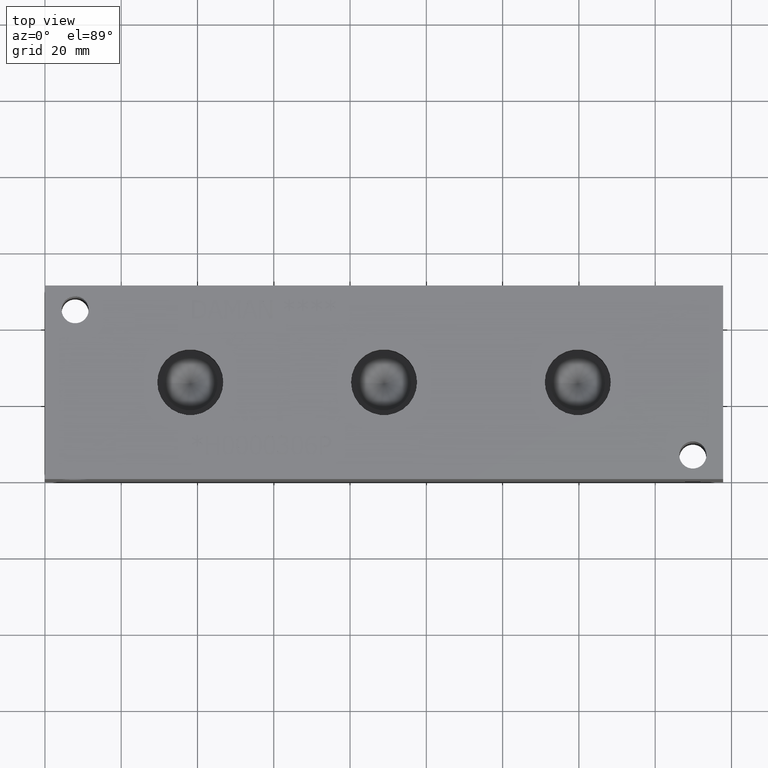
[diagram: clean part render]
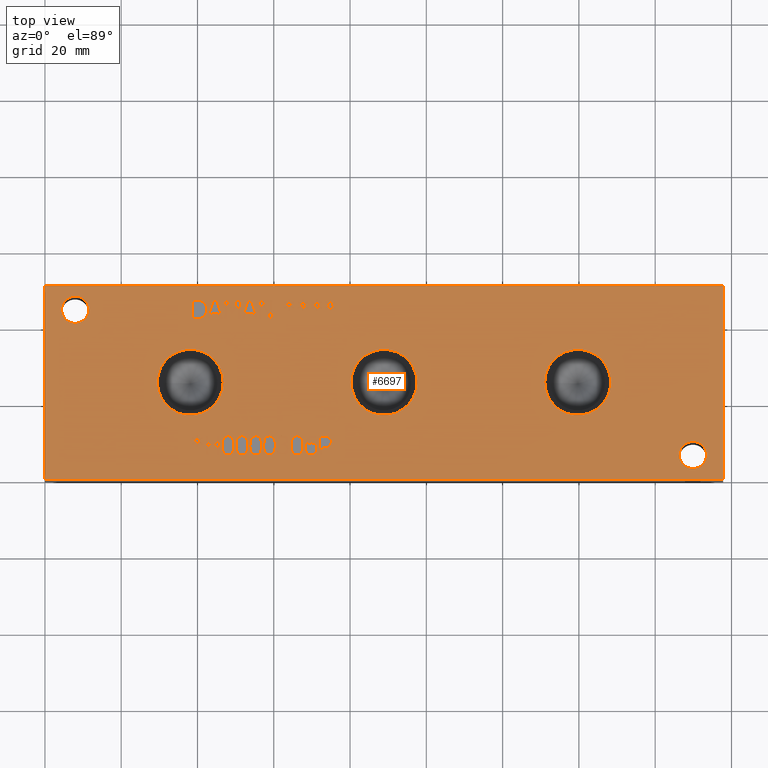
[diagram: same view with one face highlighted and labeled with its STEP entity id]
A machine part, top view. The second image highlights one B-rep face of the part: STEP entity #6697.
In plain terms, the highlighted planar face has unit normal (0, 0, 1).
Its self-contained STEP definition (entity closure, byte-faithful):
#45=CIRCLE('',#6954,3.5687);
#46=CIRCLE('',#6955,3.5687);
#47=CIRCLE('',#6956,3.5687);
#48=CIRCLE('',#6957,3.5687);
#49=CIRCLE('',#6958,8.6487);
#50=CIRCLE('',#6959,8.6487);
#51=CIRCLE('',#6960,8.6487);
#52=CIRCLE('',#6961,8.6487);
#53=CIRCLE('',#6962,8.6487);
#54=CIRCLE('',#6963,8.6487);
#99=FACE_BOUND('',#870,.T.);
#100=FACE_BOUND('',#871,.T.);
#101=FACE_BOUND('',#872,.T.);
#102=FACE_BOUND('',#873,.T.);
#103=FACE_BOUND('',#874,.T.);
#104=FACE_BOUND('',#875,.T.);
#105=FACE_BOUND('',#876,.T.);
#106=FACE_BOUND('',#877,.T.);
#107=FACE_BOUND('',#878,.T.);
#108=FACE_BOUND('',#879,.T.);
#109=FACE_BOUND('',#880,.T.);
#110=FACE_BOUND('',#881,.T.);
#111=FACE_BOUND('',#882,.T.);
#112=FACE_BOUND('',#883,.T.);
#113=FACE_BOUND('',#884,.T.);
#114=FACE_BOUND('',#885,.T.);
#115=FACE_BOUND('',#886,.T.);
#116=FACE_BOUND('',#887,.T.);
#117=FACE_BOUND('',#888,.T.);
#118=FACE_BOUND('',#889,.T.);
#119=FACE_BOUND('',#890,.T.);
#120=FACE_BOUND('',#891,.T.);
#121=FACE_BOUND('',#892,.T.);
#122=FACE_BOUND('',#893,.T.);
#197=PLANE('',#6953);
#514=FACE_OUTER_BOUND('',#869,.T.);
#869=EDGE_LOOP('',(#4994,#4995,#4996,#4997));
#870=EDGE_LOOP('',(#4998,#4999,#5000,#5001,#5002,#5003,#5004,#5005,#5006,
#5007,#5008,#5009,#5010,#5011,#5012,#5013,#5014,#5015));
#871=EDGE_LOOP('',(#5016,#5017,#5018,#5019,#5020,#5021,#5022,#5023,#5024,
#5025,#5026,#5027,#5028,#5029,#5030,#5031,#5032,#5033));
#872=EDGE_LOOP('',(#5034,#5035,#5036,#5037,#5038,#5039,#5040,#5041,#5042,
#5043,#5044,#5045,#5046));
#873=EDGE_LOOP('',(#5047,#5048,#5049,#5050,#5051,#5052,#5053,#5054));
#874=EDGE_LOOP('',(#5055,#5056,#5057,#5058,#5059,#5060,#5061));
#875=EDGE_LOOP('',(#5062,#5063,#5064,#5065,#5066,#5067,#5068,#5069));
#876=EDGE_LOOP('',(#5070,#5071,#5072,#5073,#5074,#5075,#5076,#5077,#5078,
#5079));
#877=EDGE_LOOP('',(#5080,#5081,#5082,#5083,#5084,#5085,#5086,#5087,#5088,
#5089,#5090,#5091,#5092,#5093,#5094,#5095,#5096,#5097));
#878=EDGE_LOOP('',(#5098,#5099,#5100,#5101,#5102,#5103,#5104,#5105,#5106,
#5107,#5108,#5109,#5110,#5111,#5112,#5113,#5114,#5115));
#879=EDGE_LOOP('',(#5116,#5117));
#880=EDGE_LOOP('',(#5118,#5119));
#881=EDGE_LOOP('',(#5120,#5121));
#882=EDGE_LOOP('',(#5122,#5123));
#883=EDGE_LOOP('',(#5124,#5125));
#884=EDGE_LOOP('',(#5126,#5127,#5128,#5129,#5130,#5131,#5132,#5133,#5134,
#5135,#5136,#5137,#5138,#5139,#5140,#5141,#5142,#5143,#5144,#5145,#5146,
#5147,#5148,#5149,#5150,#5151,#5152));
#885=EDGE_LOOP('',(#5153,#5154,#5155,#5156));
#886=EDGE_LOOP('',(#5157,#5158,#5159,#5160));
#887=EDGE_LOOP('',(#5161,#5162,#5163,#5164));
#888=EDGE_LOOP('',(#5165,#5166,#5167,#5168));
#889=EDGE_LOOP('',(#5169,#5170,#5171,#5172,#5173,#5174,#5175,#5176,#5177,
#5178,#5179,#5180,#5181,#5182,#5183,#5184,#5185,#5186));
#890=EDGE_LOOP('',(#5187,#5188,#5189,#5190,#5191,#5192,#5193,#5194,#5195,
#5196,#5197,#5198));
#891=EDGE_LOOP('',(#5199,#5200,#5201,#5202));
#892=EDGE_LOOP('',(#5203,#5204,#5205,#5206,#5207,#5208,#5209,#5210,#5211,
#5212,#5213,#5214,#5215,#5216));
#893=EDGE_LOOP('',(#5217,#5218,#5219,#5220,#5221,#5222,#5223,#5224,#5225));
#1109=LINE('',#8564,#1771);
#1112=LINE('',#8570,#1774);
#1115=LINE('',#8576,#1777);
#1118=LINE('',#8582,#1780);
#1121=LINE('',#8588,#1783);
#1138=LINE('',#8861,#1800);
#1141=LINE('',#8867,#1803);
#1162=LINE('',#9234,#1824);
#1166=LINE('',#9242,#1828);
#1169=LINE('',#9248,#1831);
#1172=LINE('',#9254,#1834);
#1175=LINE('',#9260,#1837);
#1178=LINE('',#9266,#1840);
#1181=LINE('',#9272,#1843);
#1184=LINE('',#9278,#1846);
#1187=LINE('',#9284,#1849);
#1190=LINE('',#9290,#1852);
#1193=LINE('',#9296,#1855);
#1196=LINE('',#9301,#1858);
#1198=LINE('',#9307,#1860);
#1202=LINE('',#9315,#1864);
#1205=LINE('',#9321,#1867);
#1208=LINE('',#9327,#1870);
#1211=LINE('',#9333,#1873);
#1214=LINE('',#9339,#1876);
#1217=LINE('',#9345,#1879);
#1220=LINE('',#9351,#1882);
#1223=LINE('',#9357,#1885);
#1226=LINE('',#9363,#1888);
#1229=LINE('',#9369,#1891);
#1232=LINE('',#9375,#1894);
#1235=LINE('',#9381,#1897);
#1238=LINE('',#9387,#1900);
#1241=LINE('',#9393,#1903);
#1244=LINE('',#9399,#1906);
#1247=LINE('',#9405,#1909);
#1250=LINE('',#9410,#1912);
#1304=LINE('',#10391,#1966);
#1307=LINE('',#10397,#1969);
#1310=LINE('',#10403,#1972);
#1318=LINE('',#10504,#1980);
#1321=LINE('',#10510,#1983);
#1329=LINE('',#10611,#1991);
#1336=LINE('',#10693,#1998);
#1339=LINE('',#10699,#2001);
#1343=LINE('',#10742,#2005);
#1344=LINE('',#10744,#2006);
#1345=LINE('',#10746,#2007);
#1346=LINE('',#10747,#2008);
#1347=LINE('',#10750,#2009);
#1348=LINE('',#10752,#2010);
#1349=LINE('',#10754,#2011);
#1350=LINE('',#10756,#2012);
#1351=LINE('',#10758,#2013);
#1352=LINE('',#10760,#2014);
#1353=LINE('',#10762,#2015);
#1354=LINE('',#10764,#2016);
#1355=LINE('',#10766,#2017);
#1356=LINE('',#10768,#2018);
#1357=LINE('',#10770,#2019);
#1358=LINE('',#10772,#2020);
#1359=LINE('',#10774,#2021);
#1360=LINE('',#10776,#2022);
#1361=LINE('',#10778,#2023);
#1362=LINE('',#10780,#2024);
#1363=LINE('',#10782,#2025);
#1364=LINE('',#10783,#2026);
#1365=LINE('',#10786,#2027);
#1366=LINE('',#10788,#2028);
#1367=LINE('',#10790,#2029);
#1368=LINE('',#10792,#2030);
#1369=LINE('',#10794,#2031);
#1370=LINE('',#10796,#2032);
#1371=LINE('',#10798,#2033);
#1372=LINE('',#10800,#2034);
#1373=LINE('',#10802,#2035);
#1374=LINE('',#10804,#2036);
#1375=LINE('',#10806,#2037);
#1376=LINE('',#10808,#2038);
#1377=LINE('',#10810,#2039);
#1378=LINE('',#10812,#2040);
#1379=LINE('',#10814,#2041);
#1380=LINE('',#10816,#2042);
#1381=LINE('',#10818,#2043);
#1382=LINE('',#10819,#2044);
#1383=LINE('',#10822,#2045);
#1384=LINE('',#10824,#2046);
#1385=LINE('',#10826,#2047);
#1386=LINE('',#10828,#2048);
#1387=LINE('',#10830,#2049);
#1388=LINE('',#10832,#2050);
#1389=LINE('',#10834,#2051);
#1390=LINE('',#10836,#2052);
#1391=LINE('',#10838,#2053);
#1392=LINE('',#10840,#2054);
#1393=LINE('',#10842,#2055);
#1394=LINE('',#10844,#2056);
#1395=LINE('',#10845,#2057);
#1396=LINE('',#10848,#2058);
#1397=LINE('',#10850,#2059);
#1398=LINE('',#10852,#2060);
#1399=LINE('',#10854,#2061);
#1400=LINE('',#10856,#2062);
#1401=LINE('',#10858,#2063);
#1402=LINE('',#10860,#2064);
#1403=LINE('',#10861,#2065);
#1404=LINE('',#10879,#2066);
#1405=LINE('',#10881,#2067);
#1406=LINE('',#10883,#2068);
#1407=LINE('',#10890,#2069);
#1408=LINE('',#10892,#2070);
#1409=LINE('',#10894,#2071);
#1410=LINE('',#10896,#2072);
#1411=LINE('',#10898,#2073);
#1412=LINE('',#10900,#2074);
#1413=LINE('',#10902,#2075);
#1414=LINE('',#10903,#2076);
#1415=LINE('',#10906,#2077);
#1416=LINE('',#10908,#2078);
#1417=LINE('',#10910,#2079);
#1418=LINE('',#10912,#2080);
#1419=LINE('',#10914,#2081);
#1420=LINE('',#10916,#2082);
#1421=LINE('',#10918,#2083);
#1422=LINE('',#10920,#2084);
#1423=LINE('',#10922,#2085);
#1424=LINE('',#10923,#2086);
#1425=LINE('',#10926,#2087);
#1426=LINE('',#10928,#2088);
#1427=LINE('',#10930,#2089);
#1428=LINE('',#10932,#2090);
#1429=LINE('',#10934,#2091);
#1430=LINE('',#10936,#2092);
#1431=LINE('',#10938,#2093);
#1432=LINE('',#10940,#2094);
#1433=LINE('',#10942,#2095);
#1434=LINE('',#10944,#2096);
#1435=LINE('',#10946,#2097);
#1436=LINE('',#10948,#2098);
#1437=LINE('',#10950,#2099);
#1438=LINE('',#10952,#2100);
#1439=LINE('',#10954,#2101);
#1440=LINE('',#10956,#2102);
#1441=LINE('',#10958,#2103);
#1442=LINE('',#10959,#2104);
#1443=LINE('',#10962,#2105);
#1444=LINE('',#10964,#2106);
#1445=LINE('',#10966,#2107);
#1446=LINE('',#10968,#2108);
#1447=LINE('',#10970,#2109);
#1448=LINE('',#10972,#2110);
#1449=LINE('',#10974,#2111);
#1450=LINE('',#10976,#2112);
#1451=LINE('',#10978,#2113);
#1452=LINE('',#10980,#2114);
#1453=LINE('',#10982,#2115);
#1454=LINE('',#10984,#2116);
#1455=LINE('',#10986,#2117);
#1456=LINE('',#10988,#2118);
#1457=LINE('',#10990,#2119);
#1458=LINE('',#10992,#2120);
#1459=LINE('',#10994,#2121);
#1460=LINE('',#10995,#2122);
#1771=VECTOR('',#7210,10.);
#1774=VECTOR('',#7215,10.);
#1777=VECTOR('',#7220,10.);
#1780=VECTOR('',#7225,10.);
#1783=VECTOR('',#7230,10.);
#1800=VECTOR('',#7251,10.);
#1803=VECTOR('',#7256,10.);
#1824=VECTOR('',#7283,10.);
#1828=VECTOR('',#7289,10.);
#1831=VECTOR('',#7294,10.);
#1834=VECTOR('',#7299,10.);
#1837=VECTOR('',#7304,10.);
#1840=VECTOR('',#7309,10.);
#1843=VECTOR('',#7314,10.);
#1846=VECTOR('',#7319,10.);
#1849=VECTOR('',#7324,10.);
#1852=VECTOR('',#7329,10.);
#1855=VECTOR('',#7334,10.);
#1858=VECTOR('',#7339,10.);
#1860=VECTOR('',#7345,10.);
#1864=VECTOR('',#7351,10.);
#1867=VECTOR('',#7356,10.);
#1870=VECTOR('',#7361,10.);
#1873=VECTOR('',#7366,10.);
#1876=VECTOR('',#7371,10.);
#1879=VECTOR('',#7376,10.);
#1882=VECTOR('',#7381,10.);
#1885=VECTOR('',#7386,10.);
#1888=VECTOR('',#7391,10.);
#1891=VECTOR('',#7396,10.);
#1894=VECTOR('',#7401,10.);
#1897=VECTOR('',#7406,10.);
#1900=VECTOR('',#7411,10.);
#1903=VECTOR('',#7416,10.);
#1906=VECTOR('',#7421,10.);
#1909=VECTOR('',#7426,10.);
#1912=VECTOR('',#7431,10.);
#1966=VECTOR('',#7497,10.);
#1969=VECTOR('',#7502,10.);
#1972=VECTOR('',#7507,10.);
#1980=VECTOR('',#7517,10.);
#1983=VECTOR('',#7522,10.);
#1991=VECTOR('',#7532,10.);
#1998=VECTOR('',#7541,10.);
#2001=VECTOR('',#7546,10.);
#2005=VECTOR('',#7554,10.);
#2006=VECTOR('',#7555,10.);
#2007=VECTOR('',#7556,10.);
#2008=VECTOR('',#7557,10.);
#2009=VECTOR('',#7558,10.);
#2010=VECTOR('',#7559,10.);
#2011=VECTOR('',#7560,10.);
#2012=VECTOR('',#7561,10.);
#2013=VECTOR('',#7562,10.);
#2014=VECTOR('',#7563,10.);
#2015=VECTOR('',#7564,10.);
#2016=VECTOR('',#7565,10.);
#2017=VECTOR('',#7566,10.);
#2018=VECTOR('',#7567,10.);
#2019=VECTOR('',#7568,10.);
#2020=VECTOR('',#7569,10.);
#2021=VECTOR('',#7570,10.);
#2022=VECTOR('',#7571,10.);
#2023=VECTOR('',#7572,10.);
#2024=VECTOR('',#7573,10.);
#2025=VECTOR('',#7574,10.);
#2026=VECTOR('',#7575,10.);
#2027=VECTOR('',#7576,10.);
#2028=VECTOR('',#7577,10.);
#2029=VECTOR('',#7578,10.);
#2030=VECTOR('',#7579,10.);
#2031=VECTOR('',#7580,10.);
#2032=VECTOR('',#7581,10.);
#2033=VECTOR('',#7582,10.);
#2034=VECTOR('',#7583,10.);
#2035=VECTOR('',#7584,10.);
#2036=VECTOR('',#7585,10.);
#2037=VECTOR('',#7586,10.);
#2038=VECTOR('',#7587,10.);
#2039=VECTOR('',#7588,10.);
#2040=VECTOR('',#7589,10.);
#2041=VECTOR('',#7590,10.);
#2042=VECTOR('',#7591,10.);
#2043=VECTOR('',#7592,10.);
#2044=VECTOR('',#7593,10.);
#2045=VECTOR('',#7594,10.);
#2046=VECTOR('',#7595,10.);
#2047=VECTOR('',#7596,10.);
#2048=VECTOR('',#7597,10.);
#2049=VECTOR('',#7598,10.);
#2050=VECTOR('',#7599,10.);
#2051=VECTOR('',#7600,10.);
#2052=VECTOR('',#7601,10.);
#2053=VECTOR('',#7602,10.);
#2054=VECTOR('',#7603,10.);
#2055=VECTOR('',#7604,10.);
#2056=VECTOR('',#7605,10.);
#2057=VECTOR('',#7606,10.);
#2058=VECTOR('',#7607,10.);
#2059=VECTOR('',#7608,10.);
#2060=VECTOR('',#7609,10.);
#2061=VECTOR('',#7610,10.);
#2062=VECTOR('',#7611,10.);
#2063=VECTOR('',#7612,10.);
#2064=VECTOR('',#7613,10.);
#2065=VECTOR('',#7614,10.);
#2066=VECTOR('',#7615,10.);
#2067=VECTOR('',#7616,10.);
#2068=VECTOR('',#7617,10.);
#2069=VECTOR('',#7618,10.);
#2070=VECTOR('',#7619,10.);
#2071=VECTOR('',#7620,10.);
#2072=VECTOR('',#7621,10.);
#2073=VECTOR('',#7622,10.);
#2074=VECTOR('',#7623,10.);
#2075=VECTOR('',#7624,10.);
#2076=VECTOR('',#7625,10.);
#2077=VECTOR('',#7626,10.);
#2078=VECTOR('',#7627,10.);
#2079=VECTOR('',#7628,10.);
#2080=VECTOR('',#7629,10.);
#2081=VECTOR('',#7630,10.);
#2082=VECTOR('',#7631,10.);
#2083=VECTOR('',#7632,10.);
#2084=VECTOR('',#7633,10.);
#2085=VECTOR('',#7634,10.);
#2086=VECTOR('',#7635,10.);
#2087=VECTOR('',#7636,10.);
#2088=VECTOR('',#7637,10.);
#2089=VECTOR('',#7638,10.);
#2090=VECTOR('',#7639,10.);
#2091=VECTOR('',#7640,10.);
#2092=VECTOR('',#7641,10.);
#2093=VECTOR('',#7642,10.);
#2094=VECTOR('',#7643,10.);
#2095=VECTOR('',#7644,10.);
#2096=VECTOR('',#7645,10.);
#2097=VECTOR('',#7646,10.);
#2098=VECTOR('',#7647,10.);
#2099=VECTOR('',#7648,10.);
#2100=VECTOR('',#7649,10.);
#2101=VECTOR('',#7650,10.);
#2102=VECTOR('',#7651,10.);
#2103=VECTOR('',#7652,10.);
#2104=VECTOR('',#7653,10.);
#2105=VECTOR('',#7654,10.);
#2106=VECTOR('',#7655,10.);
#2107=VECTOR('',#7656,10.);
#2108=VECTOR('',#7657,10.);
#2109=VECTOR('',#7658,10.);
#2110=VECTOR('',#7659,10.);
#2111=VECTOR('',#7660,10.);
#2112=VECTOR('',#7661,10.);
#2113=VECTOR('',#7662,10.);
#2114=VECTOR('',#7663,10.);
#2115=VECTOR('',#7664,10.);
#2116=VECTOR('',#7665,10.);
#2117=VECTOR('',#7666,10.);
#2118=VECTOR('',#7667,10.);
#2119=VECTOR('',#7668,10.);
#2120=VECTOR('',#7669,10.);
#2121=VECTOR('',#7670,10.);
#2122=VECTOR('',#7671,10.);
#2425=B_SPLINE_CURVE_WITH_KNOTS('',2,(#8531,#8532,#8533,#8534),
 .UNSPECIFIED.,.F.,.F.,(3,1,3),(0.,1.,2.),.UNSPECIFIED.);
#2427=B_SPLINE_CURVE_WITH_KNOTS('',2,(#8552,#8553,#8554,#8555),
 .UNSPECIFIED.,.F.,.F.,(3,1,3),(0.,1.,2.),.UNSPECIFIED.);
#2429=B_SPLINE_CURVE_WITH_KNOTS('',2,(#8601,#8602,#8603,#8604),
 .UNSPECIFIED.,.F.,.F.,(3,1,3),(0.,1.,2.),.UNSPECIFIED.);
#2431=B_SPLINE_CURVE_WITH_KNOTS('',2,(#8619,#8620,#8621,#8622),
 .UNSPECIFIED.,.F.,.F.,(3,1,3),(0.,1.,2.),.UNSPECIFIED.);
#2447=B_SPLINE_CURVE_WITH_KNOTS('',2,(#8771,#8772,#8773,#8774),
 .UNSPECIFIED.,.F.,.F.,(3,1,3),(0.,1.,2.),.UNSPECIFIED.);
#2449=B_SPLINE_CURVE_WITH_KNOTS('',2,(#8792,#8793,#8794,#8795),
 .UNSPECIFIED.,.F.,.F.,(3,1,3),(0.,1.,2.),.UNSPECIFIED.);
#2451=B_SPLINE_CURVE_WITH_KNOTS('',2,(#8811,#8812,#8813,#8814),
 .UNSPECIFIED.,.F.,.F.,(3,1,3),(0.,1.,2.),.UNSPECIFIED.);
#2453=B_SPLINE_CURVE_WITH_KNOTS('',2,(#8830,#8831,#8832,#8833),
 .UNSPECIFIED.,.F.,.F.,(3,1,3),(0.,1.,2.),.UNSPECIFIED.);
#2455=B_SPLINE_CURVE_WITH_KNOTS('',2,(#8849,#8850,#8851,#8852),
 .UNSPECIFIED.,.F.,.F.,(3,1,3),(0.,1.,2.),.UNSPECIFIED.);
#2457=B_SPLINE_CURVE_WITH_KNOTS('',2,(#8880,#8881,#8882,#8883),
 .UNSPECIFIED.,.F.,.F.,(3,1,3),(0.,1.,2.),.UNSPECIFIED.);
#2459=B_SPLINE_CURVE_WITH_KNOTS('',2,(#8899,#8900,#8901,#8902),
 .UNSPECIFIED.,.F.,.F.,(3,1,3),(0.,1.,2.),.UNSPECIFIED.);
#2461=B_SPLINE_CURVE_WITH_KNOTS('',2,(#8918,#8919,#8920,#8921),
 .UNSPECIFIED.,.F.,.F.,(3,1,3),(0.,1.,2.),.UNSPECIFIED.);
#2463=B_SPLINE_CURVE_WITH_KNOTS('',2,(#8937,#8938,#8939,#8940),
 .UNSPECIFIED.,.F.,.F.,(3,1,3),(0.,1.,2.),.UNSPECIFIED.);
#2465=B_SPLINE_CURVE_WITH_KNOTS('',2,(#8956,#8957,#8958,#8959),
 .UNSPECIFIED.,.F.,.F.,(3,1,3),(0.,1.,2.),.UNSPECIFIED.);
#2467=B_SPLINE_CURVE_WITH_KNOTS('',2,(#8975,#8976,#8977,#8978),
 .UNSPECIFIED.,.F.,.F.,(3,1,3),(0.,1.,2.),.UNSPECIFIED.);
#2469=B_SPLINE_CURVE_WITH_KNOTS('',2,(#8993,#8994,#8995,#8996),
 .UNSPECIFIED.,.F.,.F.,(3,1,3),(0.,1.,2.),.UNSPECIFIED.);
#2487=B_SPLINE_CURVE_WITH_KNOTS('',2,(#9164,#9165,#9166,#9167),
 .UNSPECIFIED.,.F.,.F.,(3,1,3),(0.,1.,2.),.UNSPECIFIED.);
#2489=B_SPLINE_CURVE_WITH_KNOTS('',2,(#9185,#9186,#9187,#9188),
 .UNSPECIFIED.,.F.,.F.,(3,1,3),(0.,1.,2.),.UNSPECIFIED.);
#2491=B_SPLINE_CURVE_WITH_KNOTS('',2,(#9204,#9205,#9206,#9207),
 .UNSPECIFIED.,.F.,.F.,(3,1,3),(0.,1.,2.),.UNSPECIFIED.);
#2493=B_SPLINE_CURVE_WITH_KNOTS('',2,(#9222,#9223,#9224,#9225),
 .UNSPECIFIED.,.F.,.F.,(3,1,3),(0.,1.,2.),.UNSPECIFIED.);
#2511=B_SPLINE_CURVE_WITH_KNOTS('',2,(#9575,#9576,#9577,#9578),
 .UNSPECIFIED.,.F.,.F.,(3,1,3),(0.,1.,2.),.UNSPECIFIED.);
#2513=B_SPLINE_CURVE_WITH_KNOTS('',2,(#9596,#9597,#9598,#9599),
 .UNSPECIFIED.,.F.,.F.,(3,1,3),(0.,1.,2.),.UNSPECIFIED.);
#2515=B_SPLINE_CURVE_WITH_KNOTS('',2,(#9615,#9616,#9617,#9618),
 .UNSPECIFIED.,.F.,.F.,(3,1,3),(0.,1.,2.),.UNSPECIFIED.);
#2517=B_SPLINE_CURVE_WITH_KNOTS('',2,(#9633,#9634,#9635,#9636),
 .UNSPECIFIED.,.F.,.F.,(3,1,3),(0.,1.,2.),.UNSPECIFIED.);
#2535=B_SPLINE_CURVE_WITH_KNOTS('',2,(#9804,#9805,#9806,#9807),
 .UNSPECIFIED.,.F.,.F.,(3,1,3),(0.,1.,2.),.UNSPECIFIED.);
#2537=B_SPLINE_CURVE_WITH_KNOTS('',2,(#9825,#9826,#9827,#9828),
 .UNSPECIFIED.,.F.,.F.,(3,1,3),(0.,1.,2.),.UNSPECIFIED.);
#2539=B_SPLINE_CURVE_WITH_KNOTS('',2,(#9844,#9845,#9846,#9847),
 .UNSPECIFIED.,.F.,.F.,(3,1,3),(0.,1.,2.),.UNSPECIFIED.);
#2541=B_SPLINE_CURVE_WITH_KNOTS('',2,(#9862,#9863,#9864,#9865),
 .UNSPECIFIED.,.F.,.F.,(3,1,3),(0.,1.,2.),.UNSPECIFIED.);
#2559=B_SPLINE_CURVE_WITH_KNOTS('',2,(#10033,#10034,#10035,#10036),
 .UNSPECIFIED.,.F.,.F.,(3,1,3),(0.,1.,2.),.UNSPECIFIED.);
#2561=B_SPLINE_CURVE_WITH_KNOTS('',2,(#10054,#10055,#10056,#10057),
 .UNSPECIFIED.,.F.,.F.,(3,1,3),(0.,1.,2.),.UNSPECIFIED.);
#2563=B_SPLINE_CURVE_WITH_KNOTS('',2,(#10073,#10074,#10075,#10076),
 .UNSPECIFIED.,.F.,.F.,(3,1,3),(0.,1.,2.),.UNSPECIFIED.);
#2565=B_SPLINE_CURVE_WITH_KNOTS('',2,(#10091,#10092,#10093,#10094),
 .UNSPECIFIED.,.F.,.F.,(3,1,3),(0.,1.,2.),.UNSPECIFIED.);
#2583=B_SPLINE_CURVE_WITH_KNOTS('',2,(#10262,#10263,#10264,#10265),
 .UNSPECIFIED.,.F.,.F.,(3,1,3),(0.,1.,2.),.UNSPECIFIED.);
#2585=B_SPLINE_CURVE_WITH_KNOTS('',2,(#10283,#10284,#10285,#10286),
 .UNSPECIFIED.,.F.,.F.,(3,1,3),(0.,1.,2.),.UNSPECIFIED.);
#2587=B_SPLINE_CURVE_WITH_KNOTS('',2,(#10302,#10303,#10304,#10305),
 .UNSPECIFIED.,.F.,.F.,(3,1,3),(0.,1.,2.),.UNSPECIFIED.);
#2589=B_SPLINE_CURVE_WITH_KNOTS('',2,(#10320,#10321,#10322,#10323),
 .UNSPECIFIED.,.F.,.F.,(3,1,3),(0.,1.,2.),.UNSPECIFIED.);
#2591=B_SPLINE_CURVE_WITH_KNOTS('',2,(#10339,#10340,#10341,#10342),
 .UNSPECIFIED.,.F.,.F.,(3,1,3),(0.,1.,2.),.UNSPECIFIED.);
#2593=B_SPLINE_CURVE_WITH_KNOTS('',2,(#10360,#10361,#10362,#10363),
 .UNSPECIFIED.,.F.,.F.,(3,1,3),(0.,1.,2.),.UNSPECIFIED.);
#2595=B_SPLINE_CURVE_WITH_KNOTS('',2,(#10379,#10380,#10381,#10382),
 .UNSPECIFIED.,.F.,.F.,(3,1,3),(0.,1.,2.),.UNSPECIFIED.);
#2597=B_SPLINE_CURVE_WITH_KNOTS('',2,(#10416,#10417,#10418,#10419),
 .UNSPECIFIED.,.F.,.F.,(3,1,3),(0.,1.,2.),.UNSPECIFIED.);
#2599=B_SPLINE_CURVE_WITH_KNOTS('',2,(#10435,#10436,#10437,#10438),
 .UNSPECIFIED.,.F.,.F.,(3,1,3),(0.,1.,2.),.UNSPECIFIED.);
#2601=B_SPLINE_CURVE_WITH_KNOTS('',2,(#10454,#10455,#10456,#10457),
 .UNSPECIFIED.,.F.,.F.,(3,1,3),(0.,1.,2.),.UNSPECIFIED.);
#2603=B_SPLINE_CURVE_WITH_KNOTS('',2,(#10473,#10474,#10475,#10476),
 .UNSPECIFIED.,.F.,.F.,(3,1,3),(0.,1.,2.),.UNSPECIFIED.);
#2605=B_SPLINE_CURVE_WITH_KNOTS('',2,(#10492,#10493,#10494,#10495),
 .UNSPECIFIED.,.F.,.F.,(3,1,3),(0.,1.,2.),.UNSPECIFIED.);
#2607=B_SPLINE_CURVE_WITH_KNOTS('',2,(#10523,#10524,#10525,#10526),
 .UNSPECIFIED.,.F.,.F.,(3,1,3),(0.,1.,2.),.UNSPECIFIED.);
#2609=B_SPLINE_CURVE_WITH_KNOTS('',2,(#10542,#10543,#10544,#10545),
 .UNSPECIFIED.,.F.,.F.,(3,1,3),(0.,1.,2.),.UNSPECIFIED.);
#2611=B_SPLINE_CURVE_WITH_KNOTS('',2,(#10561,#10562,#10563,#10564),
 .UNSPECIFIED.,.F.,.F.,(3,1,3),(0.,1.,2.),.UNSPECIFIED.);
#2613=B_SPLINE_CURVE_WITH_KNOTS('',2,(#10580,#10581,#10582,#10583),
 .UNSPECIFIED.,.F.,.F.,(3,1,3),(0.,1.,2.),.UNSPECIFIED.);
#2615=B_SPLINE_CURVE_WITH_KNOTS('',2,(#10599,#10600,#10601,#10602),
 .UNSPECIFIED.,.F.,.F.,(3,1,3),(0.,1.,2.),.UNSPECIFIED.);
#2617=B_SPLINE_CURVE_WITH_KNOTS('',2,(#10624,#10625,#10626,#10627),
 .UNSPECIFIED.,.F.,.F.,(3,1,3),(0.,1.,2.),.UNSPECIFIED.);
#2619=B_SPLINE_CURVE_WITH_KNOTS('',2,(#10643,#10644,#10645,#10646),
 .UNSPECIFIED.,.F.,.F.,(3,1,3),(0.,1.,2.),.UNSPECIFIED.);
#2621=B_SPLINE_CURVE_WITH_KNOTS('',2,(#10662,#10663,#10664,#10665),
 .UNSPECIFIED.,.F.,.F.,(3,1,3),(0.,1.,2.),.UNSPECIFIED.);
#2623=B_SPLINE_CURVE_WITH_KNOTS('',2,(#10681,#10682,#10683,#10684),
 .UNSPECIFIED.,.F.,.F.,(3,1,3),(0.,1.,2.),.UNSPECIFIED.);
#2625=B_SPLINE_CURVE_WITH_KNOTS('',2,(#10712,#10713,#10714,#10715),
 .UNSPECIFIED.,.F.,.F.,(3,1,3),(0.,1.,2.),.UNSPECIFIED.);
#2627=B_SPLINE_CURVE_WITH_KNOTS('',2,(#10730,#10731,#10732,#10733),
 .UNSPECIFIED.,.F.,.F.,(3,1,3),(0.,1.,2.),.UNSPECIFIED.);
#2629=B_SPLINE_CURVE_WITH_KNOTS('',2,(#10864,#10865,#10866,#10867),
 .UNSPECIFIED.,.F.,.F.,(3,1,3),(0.,1.,2.),.UNSPECIFIED.);
#2630=B_SPLINE_CURVE_WITH_KNOTS('',2,(#10869,#10870,#10871,#10872),
 .UNSPECIFIED.,.F.,.F.,(3,1,3),(0.,1.,2.),.UNSPECIFIED.);
#2631=B_SPLINE_CURVE_WITH_KNOTS('',2,(#10874,#10875,#10876,#10877),
 .UNSPECIFIED.,.F.,.F.,(3,1,3),(0.,1.,2.),.UNSPECIFIED.);
#2632=B_SPLINE_CURVE_WITH_KNOTS('',2,(#10884,#10885,#10886,#10887),
 .UNSPECIFIED.,.F.,.F.,(3,1,3),(0.,1.,2.),.UNSPECIFIED.);
#2659=VERTEX_POINT('',#8529);
#2660=VERTEX_POINT('',#8530);
#2663=VERTEX_POINT('',#8551);
#2665=VERTEX_POINT('',#8563);
#2667=VERTEX_POINT('',#8569);
#2669=VERTEX_POINT('',#8575);
#2671=VERTEX_POINT('',#8581);
#2673=VERTEX_POINT('',#8587);
#2675=VERTEX_POINT('',#8600);
#2691=VERTEX_POINT('',#8769);
#2692=VERTEX_POINT('',#8770);
#2695=VERTEX_POINT('',#8791);
#2697=VERTEX_POINT('',#8810);
#2699=VERTEX_POINT('',#8829);
#2701=VERTEX_POINT('',#8848);
#2703=VERTEX_POINT('',#8860);
#2705=VERTEX_POINT('',#8866);
#2707=VERTEX_POINT('',#8879);
#2709=VERTEX_POINT('',#8898);
#2711=VERTEX_POINT('',#8917);
#2713=VERTEX_POINT('',#8936);
#2715=VERTEX_POINT('',#8955);
#2717=VERTEX_POINT('',#8974);
#2735=VERTEX_POINT('',#9162);
#2736=VERTEX_POINT('',#9163);
#2739=VERTEX_POINT('',#9184);
#2741=VERTEX_POINT('',#9203);
#2743=VERTEX_POINT('',#9232);
#2744=VERTEX_POINT('',#9233);
#2747=VERTEX_POINT('',#9241);
#2749=VERTEX_POINT('',#9247);
#2751=VERTEX_POINT('',#9253);
#2753=VERTEX_POINT('',#9259);
#2755=VERTEX_POINT('',#9265);
#2757=VERTEX_POINT('',#9271);
#2759=VERTEX_POINT('',#9277);
#2761=VERTEX_POINT('',#9283);
#2763=VERTEX_POINT('',#9289);
#2765=VERTEX_POINT('',#9295);
#2767=VERTEX_POINT('',#9305);
#2768=VERTEX_POINT('',#9306);
#2771=VERTEX_POINT('',#9314);
#2773=VERTEX_POINT('',#9320);
#2775=VERTEX_POINT('',#9326);
#2777=VERTEX_POINT('',#9332);
#2779=VERTEX_POINT('',#9338);
#2781=VERTEX_POINT('',#9344);
#2783=VERTEX_POINT('',#9350);
#2785=VERTEX_POINT('',#9356);
#2787=VERTEX_POINT('',#9362);
#2789=VERTEX_POINT('',#9368);
#2791=VERTEX_POINT('',#9374);
#2793=VERTEX_POINT('',#9380);
#2795=VERTEX_POINT('',#9386);
#2797=VERTEX_POINT('',#9392);
#2799=VERTEX_POINT('',#9398);
#2801=VERTEX_POINT('',#9404);
#2819=VERTEX_POINT('',#9573);
#2820=VERTEX_POINT('',#9574);
#2823=VERTEX_POINT('',#9595);
#2825=VERTEX_POINT('',#9614);
#2843=VERTEX_POINT('',#9802);
#2844=VERTEX_POINT('',#9803);
#2847=VERTEX_POINT('',#9824);
#2849=VERTEX_POINT('',#9843);
#2867=VERTEX_POINT('',#10031);
#2868=VERTEX_POINT('',#10032);
#2871=VERTEX_POINT('',#10053);
#2873=VERTEX_POINT('',#10072);
#2891=VERTEX_POINT('',#10260);
#2892=VERTEX_POINT('',#10261);
#2895=VERTEX_POINT('',#10282);
#2897=VERTEX_POINT('',#10301);
#2899=VERTEX_POINT('',#10337);
#2900=VERTEX_POINT('',#10338);
#2903=VERTEX_POINT('',#10359);
#2905=VERTEX_POINT('',#10378);
#2907=VERTEX_POINT('',#10390);
#2909=VERTEX_POINT('',#10396);
#2911=VERTEX_POINT('',#10402);
#2913=VERTEX_POINT('',#10415);
#2915=VERTEX_POINT('',#10434);
#2917=VERTEX_POINT('',#10453);
#2919=VERTEX_POINT('',#10472);
#2921=VERTEX_POINT('',#10491);
#2923=VERTEX_POINT('',#10503);
#2925=VERTEX_POINT('',#10509);
#2927=VERTEX_POINT('',#10522);
#2929=VERTEX_POINT('',#10541);
#2931=VERTEX_POINT('',#10560);
#2933=VERTEX_POINT('',#10579);
#2935=VERTEX_POINT('',#10598);
#2937=VERTEX_POINT('',#10610);
#2939=VERTEX_POINT('',#10623);
#2941=VERTEX_POINT('',#10642);
#2943=VERTEX_POINT('',#10661);
#2945=VERTEX_POINT('',#10680);
#2947=VERTEX_POINT('',#10692);
#2949=VERTEX_POINT('',#10698);
#2951=VERTEX_POINT('',#10711);
#2953=VERTEX_POINT('',#10740);
#2954=VERTEX_POINT('',#10741);
#2955=VERTEX_POINT('',#10743);
#2956=VERTEX_POINT('',#10745);
#2957=VERTEX_POINT('',#10748);
#2958=VERTEX_POINT('',#10749);
#2959=VERTEX_POINT('',#10751);
#2960=VERTEX_POINT('',#10753);
#2961=VERTEX_POINT('',#10755);
#2962=VERTEX_POINT('',#10757);
#2963=VERTEX_POINT('',#10759);
#2964=VERTEX_POINT('',#10761);
#2965=VERTEX_POINT('',#10763);
#2966=VERTEX_POINT('',#10765);
#2967=VERTEX_POINT('',#10767);
#2968=VERTEX_POINT('',#10769);
#2969=VERTEX_POINT('',#10771);
#2970=VERTEX_POINT('',#10773);
#2971=VERTEX_POINT('',#10775);
#2972=VERTEX_POINT('',#10777);
#2973=VERTEX_POINT('',#10779);
#2974=VERTEX_POINT('',#10781);
#2975=VERTEX_POINT('',#10784);
#2976=VERTEX_POINT('',#10785);
#2977=VERTEX_POINT('',#10787);
#2978=VERTEX_POINT('',#10789);
#2979=VERTEX_POINT('',#10791);
#2980=VERTEX_POINT('',#10793);
#2981=VERTEX_POINT('',#10795);
#2982=VERTEX_POINT('',#10797);
#2983=VERTEX_POINT('',#10799);
#2984=VERTEX_POINT('',#10801);
#2985=VERTEX_POINT('',#10803);
#2986=VERTEX_POINT('',#10805);
#2987=VERTEX_POINT('',#10807);
#2988=VERTEX_POINT('',#10809);
#2989=VERTEX_POINT('',#10811);
#2990=VERTEX_POINT('',#10813);
#2991=VERTEX_POINT('',#10815);
#2992=VERTEX_POINT('',#10817);
#2993=VERTEX_POINT('',#10820);
#2994=VERTEX_POINT('',#10821);
#2995=VERTEX_POINT('',#10823);
#2996=VERTEX_POINT('',#10825);
#2997=VERTEX_POINT('',#10827);
#2998=VERTEX_POINT('',#10829);
#2999=VERTEX_POINT('',#10831);
#3000=VERTEX_POINT('',#10833);
#3001=VERTEX_POINT('',#10835);
#3002=VERTEX_POINT('',#10837);
#3003=VERTEX_POINT('',#10839);
#3004=VERTEX_POINT('',#10841);
#3005=VERTEX_POINT('',#10843);
#3006=VERTEX_POINT('',#10846);
#3007=VERTEX_POINT('',#10847);
#3008=VERTEX_POINT('',#10849);
#3009=VERTEX_POINT('',#10851);
#3010=VERTEX_POINT('',#10853);
#3011=VERTEX_POINT('',#10855);
#3012=VERTEX_POINT('',#10857);
#3013=VERTEX_POINT('',#10859);
#3014=VERTEX_POINT('',#10862);
#3015=VERTEX_POINT('',#10863);
#3016=VERTEX_POINT('',#10868);
#3017=VERTEX_POINT('',#10873);
#3018=VERTEX_POINT('',#10878);
#3019=VERTEX_POINT('',#10880);
#3020=VERTEX_POINT('',#10882);
#3021=VERTEX_POINT('',#10888);
#3022=VERTEX_POINT('',#10889);
#3023=VERTEX_POINT('',#10891);
#3024=VERTEX_POINT('',#10893);
#3025=VERTEX_POINT('',#10895);
#3026=VERTEX_POINT('',#10897);
#3027=VERTEX_POINT('',#10899);
#3028=VERTEX_POINT('',#10901);
#3029=VERTEX_POINT('',#10904);
#3030=VERTEX_POINT('',#10905);
#3031=VERTEX_POINT('',#10907);
#3032=VERTEX_POINT('',#10909);
#3033=VERTEX_POINT('',#10911);
#3034=VERTEX_POINT('',#10913);
#3035=VERTEX_POINT('',#10915);
#3036=VERTEX_POINT('',#10917);
#3037=VERTEX_POINT('',#10919);
#3038=VERTEX_POINT('',#10921);
#3039=VERTEX_POINT('',#10924);
#3040=VERTEX_POINT('',#10925);
#3041=VERTEX_POINT('',#10927);
#3042=VERTEX_POINT('',#10929);
#3043=VERTEX_POINT('',#10931);
#3044=VERTEX_POINT('',#10933);
#3045=VERTEX_POINT('',#10935);
#3046=VERTEX_POINT('',#10937);
#3047=VERTEX_POINT('',#10939);
#3048=VERTEX_POINT('',#10941);
#3049=VERTEX_POINT('',#10943);
#3050=VERTEX_POINT('',#10945);
#3051=VERTEX_POINT('',#10947);
#3052=VERTEX_POINT('',#10949);
#3053=VERTEX_POINT('',#10951);
#3054=VERTEX_POINT('',#10953);
#3055=VERTEX_POINT('',#10955);
#3056=VERTEX_POINT('',#10957);
#3057=VERTEX_POINT('',#10960);
#3058=VERTEX_POINT('',#10961);
#3059=VERTEX_POINT('',#10963);
#3060=VERTEX_POINT('',#10965);
#3061=VERTEX_POINT('',#10967);
#3062=VERTEX_POINT('',#10969);
#3063=VERTEX_POINT('',#10971);
#3064=VERTEX_POINT('',#10973);
#3065=VERTEX_POINT('',#10975);
#3066=VERTEX_POINT('',#10977);
#3067=VERTEX_POINT('',#10979);
#3068=VERTEX_POINT('',#10981);
#3069=VERTEX_POINT('',#10983);
#3070=VERTEX_POINT('',#10985);
#3071=VERTEX_POINT('',#10987);
#3072=VERTEX_POINT('',#10989);
#3073=VERTEX_POINT('',#10991);
#3074=VERTEX_POINT('',#10993);
#3075=VERTEX_POINT('',#10996);
#3076=VERTEX_POINT('',#10997);
#3077=VERTEX_POINT('',#11000);
#3078=VERTEX_POINT('',#11001);
#3079=VERTEX_POINT('',#11004);
#3080=VERTEX_POINT('',#11005);
#3081=VERTEX_POINT('',#11008);
#3082=VERTEX_POINT('',#11009);
#3083=VERTEX_POINT('',#11012);
#3084=VERTEX_POINT('',#11013);
#3300=EDGE_CURVE('',#2659,#2660,#2425,.T.);
#3304=EDGE_CURVE('',#2663,#2659,#2427,.T.);
#3307=EDGE_CURVE('',#2665,#2663,#1109,.T.);
#3310=EDGE_CURVE('',#2667,#2665,#1112,.T.);
#3313=EDGE_CURVE('',#2669,#2667,#1115,.T.);
#3316=EDGE_CURVE('',#2671,#2669,#1118,.T.);
#3319=EDGE_CURVE('',#2673,#2671,#1121,.T.);
#3322=EDGE_CURVE('',#2675,#2673,#2429,.T.);
#3325=EDGE_CURVE('',#2660,#2675,#2431,.T.);
#3348=EDGE_CURVE('',#2691,#2692,#2447,.T.);
#3352=EDGE_CURVE('',#2695,#2691,#2449,.T.);
#3355=EDGE_CURVE('',#2697,#2695,#2451,.T.);
#3358=EDGE_CURVE('',#2699,#2697,#2453,.T.);
#3361=EDGE_CURVE('',#2701,#2699,#2455,.T.);
#3364=EDGE_CURVE('',#2703,#2701,#1138,.T.);
#3367=EDGE_CURVE('',#2705,#2703,#1141,.T.);
#3370=EDGE_CURVE('',#2707,#2705,#2457,.T.);
#3373=EDGE_CURVE('',#2709,#2707,#2459,.T.);
#3376=EDGE_CURVE('',#2711,#2709,#2461,.T.);
#3379=EDGE_CURVE('',#2713,#2711,#2463,.T.);
#3382=EDGE_CURVE('',#2715,#2713,#2465,.T.);
#3385=EDGE_CURVE('',#2717,#2715,#2467,.T.);
#3388=EDGE_CURVE('',#2692,#2717,#2469,.T.);
#3414=EDGE_CURVE('',#2735,#2736,#2487,.T.);
#3418=EDGE_CURVE('',#2739,#2735,#2489,.T.);
#3421=EDGE_CURVE('',#2741,#2739,#2491,.T.);
#3424=EDGE_CURVE('',#2736,#2741,#2493,.T.);
#3426=EDGE_CURVE('',#2743,#2744,#1162,.T.);
#3430=EDGE_CURVE('',#2747,#2743,#1166,.T.);
#3433=EDGE_CURVE('',#2749,#2747,#1169,.T.);
#3436=EDGE_CURVE('',#2751,#2749,#1172,.T.);
#3439=EDGE_CURVE('',#2753,#2751,#1175,.T.);
#3442=EDGE_CURVE('',#2755,#2753,#1178,.T.);
#3445=EDGE_CURVE('',#2757,#2755,#1181,.T.);
#3448=EDGE_CURVE('',#2759,#2757,#1184,.T.);
#3451=EDGE_CURVE('',#2761,#2759,#1187,.T.);
#3454=EDGE_CURVE('',#2763,#2761,#1190,.T.);
#3457=EDGE_CURVE('',#2765,#2763,#1193,.T.);
#3460=EDGE_CURVE('',#2744,#2765,#1196,.T.);
#3462=EDGE_CURVE('',#2767,#2768,#1198,.T.);
#3466=EDGE_CURVE('',#2771,#2767,#1202,.T.);
#3469=EDGE_CURVE('',#2773,#2771,#1205,.T.);
#3472=EDGE_CURVE('',#2775,#2773,#1208,.T.);
#3475=EDGE_CURVE('',#2777,#2775,#1211,.T.);
#3478=EDGE_CURVE('',#2779,#2777,#1214,.T.);
#3481=EDGE_CURVE('',#2781,#2779,#1217,.T.);
#3484=EDGE_CURVE('',#2783,#2781,#1220,.T.);
#3487=EDGE_CURVE('',#2785,#2783,#1223,.T.);
#3490=EDGE_CURVE('',#2787,#2785,#1226,.T.);
#3493=EDGE_CURVE('',#2789,#2787,#1229,.T.);
#3496=EDGE_CURVE('',#2791,#2789,#1232,.T.);
#3499=EDGE_CURVE('',#2793,#2791,#1235,.T.);
#3502=EDGE_CURVE('',#2795,#2793,#1238,.T.);
#3505=EDGE_CURVE('',#2797,#2795,#1241,.T.);
#3508=EDGE_CURVE('',#2799,#2797,#1244,.T.);
#3511=EDGE_CURVE('',#2801,#2799,#1247,.T.);
#3514=EDGE_CURVE('',#2768,#2801,#1250,.T.);
#3540=EDGE_CURVE('',#2819,#2820,#2511,.T.);
#3544=EDGE_CURVE('',#2823,#2819,#2513,.T.);
#3547=EDGE_CURVE('',#2825,#2823,#2515,.T.);
#3550=EDGE_CURVE('',#2820,#2825,#2517,.T.);
#3576=EDGE_CURVE('',#2843,#2844,#2535,.T.);
#3580=EDGE_CURVE('',#2847,#2843,#2537,.T.);
#3583=EDGE_CURVE('',#2849,#2847,#2539,.T.);
#3586=EDGE_CURVE('',#2844,#2849,#2541,.T.);
#3612=EDGE_CURVE('',#2867,#2868,#2559,.T.);
#3616=EDGE_CURVE('',#2871,#2867,#2561,.T.);
#3619=EDGE_CURVE('',#2873,#2871,#2563,.T.);
#3622=EDGE_CURVE('',#2868,#2873,#2565,.T.);
#3648=EDGE_CURVE('',#2891,#2892,#2583,.T.);
#3652=EDGE_CURVE('',#2895,#2891,#2585,.T.);
#3655=EDGE_CURVE('',#2897,#2895,#2587,.T.);
#3658=EDGE_CURVE('',#2892,#2897,#2589,.T.);
#3660=EDGE_CURVE('',#2899,#2900,#2591,.T.);
#3664=EDGE_CURVE('',#2903,#2899,#2593,.T.);
#3667=EDGE_CURVE('',#2905,#2903,#2595,.T.);
#3670=EDGE_CURVE('',#2907,#2905,#1304,.T.);
#3673=EDGE_CURVE('',#2909,#2907,#1307,.T.);
#3676=EDGE_CURVE('',#2911,#2909,#1310,.T.);
#3679=EDGE_CURVE('',#2913,#2911,#2597,.T.);
#3682=EDGE_CURVE('',#2915,#2913,#2599,.T.);
#3685=EDGE_CURVE('',#2917,#2915,#2601,.T.);
#3688=EDGE_CURVE('',#2919,#2917,#2603,.T.);
#3691=EDGE_CURVE('',#2921,#2919,#2605,.T.);
#3694=EDGE_CURVE('',#2923,#2921,#1318,.T.);
#3697=EDGE_CURVE('',#2925,#2923,#1321,.T.);
#3700=EDGE_CURVE('',#2927,#2925,#2607,.T.);
#3703=EDGE_CURVE('',#2929,#2927,#2609,.T.);
#3706=EDGE_CURVE('',#2931,#2929,#2611,.T.);
#3709=EDGE_CURVE('',#2933,#2931,#2613,.T.);
#3712=EDGE_CURVE('',#2935,#2933,#2615,.T.);
#3715=EDGE_CURVE('',#2937,#2935,#1329,.T.);
#3718=EDGE_CURVE('',#2939,#2937,#2617,.T.);
#3721=EDGE_CURVE('',#2941,#2939,#2619,.T.);
#3724=EDGE_CURVE('',#2943,#2941,#2621,.T.);
#3727=EDGE_CURVE('',#2945,#2943,#2623,.T.);
#3730=EDGE_CURVE('',#2947,#2945,#1336,.T.);
#3733=EDGE_CURVE('',#2949,#2947,#1339,.T.);
#3736=EDGE_CURVE('',#2951,#2949,#2625,.T.);
#3739=EDGE_CURVE('',#2900,#2951,#2627,.T.);
#3741=EDGE_CURVE('',#2953,#2954,#1343,.T.);
#3742=EDGE_CURVE('',#2954,#2955,#1344,.T.);
#3743=EDGE_CURVE('',#2955,#2956,#1345,.T.);
#3744=EDGE_CURVE('',#2956,#2953,#1346,.T.);
#3745=EDGE_CURVE('',#2957,#2958,#1347,.T.);
#3746=EDGE_CURVE('',#2958,#2959,#1348,.T.);
#3747=EDGE_CURVE('',#2959,#2960,#1349,.T.);
#3748=EDGE_CURVE('',#2960,#2961,#1350,.T.);
#3749=EDGE_CURVE('',#2961,#2962,#1351,.T.);
#3750=EDGE_CURVE('',#2962,#2963,#1352,.T.);
#3751=EDGE_CURVE('',#2963,#2964,#1353,.T.);
#3752=EDGE_CURVE('',#2964,#2965,#1354,.T.);
#3753=EDGE_CURVE('',#2965,#2966,#1355,.T.);
#3754=EDGE_CURVE('',#2966,#2967,#1356,.T.);
#3755=EDGE_CURVE('',#2967,#2968,#1357,.T.);
#3756=EDGE_CURVE('',#2968,#2969,#1358,.T.);
#3757=EDGE_CURVE('',#2969,#2970,#1359,.T.);
#3758=EDGE_CURVE('',#2970,#2971,#1360,.T.);
#3759=EDGE_CURVE('',#2971,#2972,#1361,.T.);
#3760=EDGE_CURVE('',#2972,#2973,#1362,.T.);
#3761=EDGE_CURVE('',#2973,#2974,#1363,.T.);
#3762=EDGE_CURVE('',#2974,#2957,#1364,.T.);
#3763=EDGE_CURVE('',#2975,#2976,#1365,.T.);
#3764=EDGE_CURVE('',#2976,#2977,#1366,.T.);
#3765=EDGE_CURVE('',#2977,#2978,#1367,.T.);
#3766=EDGE_CURVE('',#2978,#2979,#1368,.T.);
#3767=EDGE_CURVE('',#2979,#2980,#1369,.T.);
#3768=EDGE_CURVE('',#2980,#2981,#1370,.T.);
#3769=EDGE_CURVE('',#2981,#2982,#1371,.T.);
#3770=EDGE_CURVE('',#2982,#2983,#1372,.T.);
#3771=EDGE_CURVE('',#2983,#2984,#1373,.T.);
#3772=EDGE_CURVE('',#2984,#2985,#1374,.T.);
#3773=EDGE_CURVE('',#2985,#2986,#1375,.T.);
#3774=EDGE_CURVE('',#2986,#2987,#1376,.T.);
#3775=EDGE_CURVE('',#2987,#2988,#1377,.T.);
#3776=EDGE_CURVE('',#2988,#2989,#1378,.T.);
#3777=EDGE_CURVE('',#2989,#2990,#1379,.T.);
#3778=EDGE_CURVE('',#2990,#2991,#1380,.T.);
#3779=EDGE_CURVE('',#2991,#2992,#1381,.T.);
#3780=EDGE_CURVE('',#2992,#2975,#1382,.T.);
#3781=EDGE_CURVE('',#2993,#2994,#1383,.T.);
#3782=EDGE_CURVE('',#2994,#2995,#1384,.T.);
#3783=EDGE_CURVE('',#2995,#2996,#1385,.T.);
#3784=EDGE_CURVE('',#2996,#2997,#1386,.T.);
#3785=EDGE_CURVE('',#2997,#2998,#1387,.T.);
#3786=EDGE_CURVE('',#2998,#2999,#1388,.T.);
#3787=EDGE_CURVE('',#2999,#3000,#1389,.T.);
#3788=EDGE_CURVE('',#3000,#3001,#1390,.T.);
#3789=EDGE_CURVE('',#3001,#3002,#1391,.T.);
#3790=EDGE_CURVE('',#3002,#3003,#1392,.T.);
#3791=EDGE_CURVE('',#3003,#3004,#1393,.T.);
#3792=EDGE_CURVE('',#3004,#3005,#1394,.T.);
#3793=EDGE_CURVE('',#3005,#2993,#1395,.T.);
#3794=EDGE_CURVE('',#3006,#3007,#1396,.T.);
#3795=EDGE_CURVE('',#3007,#3008,#1397,.T.);
#3796=EDGE_CURVE('',#3008,#3009,#1398,.T.);
#3797=EDGE_CURVE('',#3009,#3010,#1399,.T.);
#3798=EDGE_CURVE('',#3010,#3011,#1400,.T.);
#3799=EDGE_CURVE('',#3011,#3012,#1401,.T.);
#3800=EDGE_CURVE('',#3012,#3013,#1402,.T.);
#3801=EDGE_CURVE('',#3013,#3006,#1403,.T.);
#3802=EDGE_CURVE('',#3014,#3015,#2629,.T.);
#3803=EDGE_CURVE('',#3015,#3016,#2630,.T.);
#3804=EDGE_CURVE('',#3016,#3017,#2631,.T.);
#3805=EDGE_CURVE('',#3017,#3018,#1404,.T.);
#3806=EDGE_CURVE('',#3018,#3019,#1405,.T.);
#3807=EDGE_CURVE('',#3019,#3020,#1406,.T.);
#3808=EDGE_CURVE('',#3020,#3014,#2632,.T.);
#3809=EDGE_CURVE('',#3021,#3022,#1407,.T.);
#3810=EDGE_CURVE('',#3022,#3023,#1408,.T.);
#3811=EDGE_CURVE('',#3023,#3024,#1409,.T.);
#3812=EDGE_CURVE('',#3024,#3025,#1410,.T.);
#3813=EDGE_CURVE('',#3025,#3026,#1411,.T.);
#3814=EDGE_CURVE('',#3026,#3027,#1412,.T.);
#3815=EDGE_CURVE('',#3027,#3028,#1413,.T.);
#3816=EDGE_CURVE('',#3028,#3021,#1414,.T.);
#3817=EDGE_CURVE('',#3029,#3030,#1415,.T.);
#3818=EDGE_CURVE('',#3030,#3031,#1416,.T.);
#3819=EDGE_CURVE('',#3031,#3032,#1417,.T.);
#3820=EDGE_CURVE('',#3032,#3033,#1418,.T.);
#3821=EDGE_CURVE('',#3033,#3034,#1419,.T.);
#3822=EDGE_CURVE('',#3034,#3035,#1420,.T.);
#3823=EDGE_CURVE('',#3035,#3036,#1421,.T.);
#3824=EDGE_CURVE('',#3036,#3037,#1422,.T.);
#3825=EDGE_CURVE('',#3037,#3038,#1423,.T.);
#3826=EDGE_CURVE('',#3038,#3029,#1424,.T.);
#3827=EDGE_CURVE('',#3039,#3040,#1425,.T.);
#3828=EDGE_CURVE('',#3040,#3041,#1426,.T.);
#3829=EDGE_CURVE('',#3041,#3042,#1427,.T.);
#3830=EDGE_CURVE('',#3042,#3043,#1428,.T.);
#3831=EDGE_CURVE('',#3043,#3044,#1429,.T.);
#3832=EDGE_CURVE('',#3044,#3045,#1430,.T.);
#3833=EDGE_CURVE('',#3045,#3046,#1431,.T.);
#3834=EDGE_CURVE('',#3046,#3047,#1432,.T.);
#3835=EDGE_CURVE('',#3047,#3048,#1433,.T.);
#3836=EDGE_CURVE('',#3048,#3049,#1434,.T.);
#3837=EDGE_CURVE('',#3049,#3050,#1435,.T.);
#3838=EDGE_CURVE('',#3050,#3051,#1436,.T.);
#3839=EDGE_CURVE('',#3051,#3052,#1437,.T.);
#3840=EDGE_CURVE('',#3052,#3053,#1438,.T.);
#3841=EDGE_CURVE('',#3053,#3054,#1439,.T.);
#3842=EDGE_CURVE('',#3054,#3055,#1440,.T.);
#3843=EDGE_CURVE('',#3055,#3056,#1441,.T.);
#3844=EDGE_CURVE('',#3056,#3039,#1442,.T.);
#3845=EDGE_CURVE('',#3057,#3058,#1443,.T.);
#3846=EDGE_CURVE('',#3058,#3059,#1444,.T.);
#3847=EDGE_CURVE('',#3059,#3060,#1445,.T.);
#3848=EDGE_CURVE('',#3060,#3061,#1446,.T.);
#3849=EDGE_CURVE('',#3061,#3062,#1447,.T.);
#3850=EDGE_CURVE('',#3062,#3063,#1448,.T.);
#3851=EDGE_CURVE('',#3063,#3064,#1449,.T.);
#3852=EDGE_CURVE('',#3064,#3065,#1450,.T.);
#3853=EDGE_CURVE('',#3065,#3066,#1451,.T.);
#3854=EDGE_CURVE('',#3066,#3067,#1452,.T.);
#3855=EDGE_CURVE('',#3067,#3068,#1453,.T.);
#3856=EDGE_CURVE('',#3068,#3069,#1454,.T.);
#3857=EDGE_CURVE('',#3069,#3070,#1455,.T.);
#3858=EDGE_CURVE('',#3070,#3071,#1456,.T.);
#3859=EDGE_CURVE('',#3071,#3072,#1457,.T.);
#3860=EDGE_CURVE('',#3072,#3073,#1458,.T.);
#3861=EDGE_CURVE('',#3073,#3074,#1459,.T.);
#3862=EDGE_CURVE('',#3074,#3057,#1460,.T.);
#3863=EDGE_CURVE('',#3075,#3076,#45,.T.);
#3864=EDGE_CURVE('',#3076,#3075,#46,.T.);
#3865=EDGE_CURVE('',#3077,#3078,#47,.T.);
#3866=EDGE_CURVE('',#3078,#3077,#48,.T.);
#3867=EDGE_CURVE('',#3079,#3080,#49,.T.);
#3868=EDGE_CURVE('',#3080,#3079,#50,.T.);
#3869=EDGE_CURVE('',#3081,#3082,#51,.T.);
#3870=EDGE_CURVE('',#3082,#3081,#52,.T.);
#3871=EDGE_CURVE('',#3083,#3084,#53,.T.);
#3872=EDGE_CURVE('',#3084,#3083,#54,.T.);
#4994=ORIENTED_EDGE('',*,*,#3741,.T.);
#4995=ORIENTED_EDGE('',*,*,#3742,.T.);
#4996=ORIENTED_EDGE('',*,*,#3743,.T.);
#4997=ORIENTED_EDGE('',*,*,#3744,.T.);
#4998=ORIENTED_EDGE('',*,*,#3745,.T.);
#4999=ORIENTED_EDGE('',*,*,#3746,.T.);
#5000=ORIENTED_EDGE('',*,*,#3747,.T.);
#5001=ORIENTED_EDGE('',*,*,#3748,.T.);
#5002=ORIENTED_EDGE('',*,*,#3749,.T.);
#5003=ORIENTED_EDGE('',*,*,#3750,.T.);
#5004=ORIENTED_EDGE('',*,*,#3751,.T.);
#5005=ORIENTED_EDGE('',*,*,#3752,.T.);
#5006=ORIENTED_EDGE('',*,*,#3753,.T.);
#5007=ORIENTED_EDGE('',*,*,#3754,.T.);
#5008=ORIENTED_EDGE('',*,*,#3755,.T.);
#5009=ORIENTED_EDGE('',*,*,#3756,.T.);
#5010=ORIENTED_EDGE('',*,*,#3757,.T.);
#5011=ORIENTED_EDGE('',*,*,#3758,.T.);
#5012=ORIENTED_EDGE('',*,*,#3759,.T.);
#5013=ORIENTED_EDGE('',*,*,#3760,.T.);
#5014=ORIENTED_EDGE('',*,*,#3761,.T.);
#5015=ORIENTED_EDGE('',*,*,#3762,.T.);
#5016=ORIENTED_EDGE('',*,*,#3763,.T.);
#5017=ORIENTED_EDGE('',*,*,#3764,.T.);
#5018=ORIENTED_EDGE('',*,*,#3765,.T.);
#5019=ORIENTED_EDGE('',*,*,#3766,.T.);
#5020=ORIENTED_EDGE('',*,*,#3767,.T.);
#5021=ORIENTED_EDGE('',*,*,#3768,.T.);
#5022=ORIENTED_EDGE('',*,*,#3769,.T.);
#5023=ORIENTED_EDGE('',*,*,#3770,.T.);
#5024=ORIENTED_EDGE('',*,*,#3771,.T.);
#5025=ORIENTED_EDGE('',*,*,#3772,.T.);
#5026=ORIENTED_EDGE('',*,*,#3773,.T.);
#5027=ORIENTED_EDGE('',*,*,#3774,.T.);
#5028=ORIENTED_EDGE('',*,*,#3775,.T.);
#5029=ORIENTED_EDGE('',*,*,#3776,.T.);
#5030=ORIENTED_EDGE('',*,*,#3777,.T.);
#5031=ORIENTED_EDGE('',*,*,#3778,.T.);
#5032=ORIENTED_EDGE('',*,*,#3779,.T.);
#5033=ORIENTED_EDGE('',*,*,#3780,.T.);
#5034=ORIENTED_EDGE('',*,*,#3781,.T.);
#5035=ORIENTED_EDGE('',*,*,#3782,.T.);
#5036=ORIENTED_EDGE('',*,*,#3783,.T.);
#5037=ORIENTED_EDGE('',*,*,#3784,.T.);
#5038=ORIENTED_EDGE('',*,*,#3785,.T.);
#5039=ORIENTED_EDGE('',*,*,#3786,.T.);
#5040=ORIENTED_EDGE('',*,*,#3787,.T.);
#5041=ORIENTED_EDGE('',*,*,#3788,.T.);
#5042=ORIENTED_EDGE('',*,*,#3789,.T.);
#5043=ORIENTED_EDGE('',*,*,#3790,.T.);
#5044=ORIENTED_EDGE('',*,*,#3791,.T.);
#5045=ORIENTED_EDGE('',*,*,#3792,.T.);
#5046=ORIENTED_EDGE('',*,*,#3793,.T.);
#5047=ORIENTED_EDGE('',*,*,#3794,.T.);
#5048=ORIENTED_EDGE('',*,*,#3795,.T.);
#5049=ORIENTED_EDGE('',*,*,#3796,.T.);
#5050=ORIENTED_EDGE('',*,*,#3797,.T.);
#5051=ORIENTED_EDGE('',*,*,#3798,.T.);
#5052=ORIENTED_EDGE('',*,*,#3799,.T.);
#5053=ORIENTED_EDGE('',*,*,#3800,.T.);
#5054=ORIENTED_EDGE('',*,*,#3801,.T.);
#5055=ORIENTED_EDGE('',*,*,#3802,.T.);
#5056=ORIENTED_EDGE('',*,*,#3803,.T.);
#5057=ORIENTED_EDGE('',*,*,#3804,.T.);
#5058=ORIENTED_EDGE('',*,*,#3805,.T.);
#5059=ORIENTED_EDGE('',*,*,#3806,.T.);
#5060=ORIENTED_EDGE('',*,*,#3807,.T.);
#5061=ORIENTED_EDGE('',*,*,#3808,.T.);
#5062=ORIENTED_EDGE('',*,*,#3809,.T.);
#5063=ORIENTED_EDGE('',*,*,#3810,.T.);
#5064=ORIENTED_EDGE('',*,*,#3811,.T.);
#5065=ORIENTED_EDGE('',*,*,#3812,.T.);
#5066=ORIENTED_EDGE('',*,*,#3813,.T.);
#5067=ORIENTED_EDGE('',*,*,#3814,.T.);
#5068=ORIENTED_EDGE('',*,*,#3815,.T.);
#5069=ORIENTED_EDGE('',*,*,#3816,.T.);
#5070=ORIENTED_EDGE('',*,*,#3817,.T.);
#5071=ORIENTED_EDGE('',*,*,#3818,.T.);
#5072=ORIENTED_EDGE('',*,*,#3819,.T.);
#5073=ORIENTED_EDGE('',*,*,#3820,.T.);
#5074=ORIENTED_EDGE('',*,*,#3821,.T.);
#5075=ORIENTED_EDGE('',*,*,#3822,.T.);
#5076=ORIENTED_EDGE('',*,*,#3823,.T.);
#5077=ORIENTED_EDGE('',*,*,#3824,.T.);
#5078=ORIENTED_EDGE('',*,*,#3825,.T.);
#5079=ORIENTED_EDGE('',*,*,#3826,.T.);
#5080=ORIENTED_EDGE('',*,*,#3827,.T.);
#5081=ORIENTED_EDGE('',*,*,#3828,.T.);
#5082=ORIENTED_EDGE('',*,*,#3829,.T.);
#5083=ORIENTED_EDGE('',*,*,#3830,.T.);
#5084=ORIENTED_EDGE('',*,*,#3831,.T.);
#5085=ORIENTED_EDGE('',*,*,#3832,.T.);
#5086=ORIENTED_EDGE('',*,*,#3833,.T.);
#5087=ORIENTED_EDGE('',*,*,#3834,.T.);
#5088=ORIENTED_EDGE('',*,*,#3835,.T.);
#5089=ORIENTED_EDGE('',*,*,#3836,.T.);
#5090=ORIENTED_EDGE('',*,*,#3837,.T.);
#5091=ORIENTED_EDGE('',*,*,#3838,.T.);
#5092=ORIENTED_EDGE('',*,*,#3839,.T.);
#5093=ORIENTED_EDGE('',*,*,#3840,.T.);
#5094=ORIENTED_EDGE('',*,*,#3841,.T.);
#5095=ORIENTED_EDGE('',*,*,#3842,.T.);
#5096=ORIENTED_EDGE('',*,*,#3843,.T.);
#5097=ORIENTED_EDGE('',*,*,#3844,.T.);
#5098=ORIENTED_EDGE('',*,*,#3845,.T.);
#5099=ORIENTED_EDGE('',*,*,#3846,.T.);
#5100=ORIENTED_EDGE('',*,*,#3847,.T.);
#5101=ORIENTED_EDGE('',*,*,#3848,.T.);
#5102=ORIENTED_EDGE('',*,*,#3849,.T.);
#5103=ORIENTED_EDGE('',*,*,#3850,.T.);
#5104=ORIENTED_EDGE('',*,*,#3851,.T.);
#5105=ORIENTED_EDGE('',*,*,#3852,.T.);
#5106=ORIENTED_EDGE('',*,*,#3853,.T.);
#5107=ORIENTED_EDGE('',*,*,#3854,.T.);
#5108=ORIENTED_EDGE('',*,*,#3855,.T.);
#5109=ORIENTED_EDGE('',*,*,#3856,.T.);
#5110=ORIENTED_EDGE('',*,*,#3857,.T.);
#5111=ORIENTED_EDGE('',*,*,#3858,.T.);
#5112=ORIENTED_EDGE('',*,*,#3859,.T.);
#5113=ORIENTED_EDGE('',*,*,#3860,.T.);
#5114=ORIENTED_EDGE('',*,*,#3861,.T.);
#5115=ORIENTED_EDGE('',*,*,#3862,.T.);
#5116=ORIENTED_EDGE('',*,*,#3863,.T.);
#5117=ORIENTED_EDGE('',*,*,#3864,.T.);
#5118=ORIENTED_EDGE('',*,*,#3865,.T.);
#5119=ORIENTED_EDGE('',*,*,#3866,.T.);
#5120=ORIENTED_EDGE('',*,*,#3867,.T.);
#5121=ORIENTED_EDGE('',*,*,#3868,.T.);
#5122=ORIENTED_EDGE('',*,*,#3869,.T.);
#5123=ORIENTED_EDGE('',*,*,#3870,.T.);
#5124=ORIENTED_EDGE('',*,*,#3871,.T.);
#5125=ORIENTED_EDGE('',*,*,#3872,.T.);
#5126=ORIENTED_EDGE('',*,*,#3660,.T.);
#5127=ORIENTED_EDGE('',*,*,#3739,.T.);
#5128=ORIENTED_EDGE('',*,*,#3736,.T.);
#5129=ORIENTED_EDGE('',*,*,#3733,.T.);
#5130=ORIENTED_EDGE('',*,*,#3730,.T.);
#5131=ORIENTED_EDGE('',*,*,#3727,.T.);
#5132=ORIENTED_EDGE('',*,*,#3724,.T.);
#5133=ORIENTED_EDGE('',*,*,#3721,.T.);
#5134=ORIENTED_EDGE('',*,*,#3718,.T.);
#5135=ORIENTED_EDGE('',*,*,#3715,.T.);
#5136=ORIENTED_EDGE('',*,*,#3712,.T.);
#5137=ORIENTED_EDGE('',*,*,#3709,.T.);
#5138=ORIENTED_EDGE('',*,*,#3706,.T.);
#5139=ORIENTED_EDGE('',*,*,#3703,.T.);
#5140=ORIENTED_EDGE('',*,*,#3700,.T.);
#5141=ORIENTED_EDGE('',*,*,#3697,.T.);
#5142=ORIENTED_EDGE('',*,*,#3694,.T.);
#5143=ORIENTED_EDGE('',*,*,#3691,.T.);
#5144=ORIENTED_EDGE('',*,*,#3688,.T.);
#5145=ORIENTED_EDGE('',*,*,#3685,.T.);
#5146=ORIENTED_EDGE('',*,*,#3682,.T.);
#5147=ORIENTED_EDGE('',*,*,#3679,.T.);
#5148=ORIENTED_EDGE('',*,*,#3676,.T.);
#5149=ORIENTED_EDGE('',*,*,#3673,.T.);
#5150=ORIENTED_EDGE('',*,*,#3670,.T.);
#5151=ORIENTED_EDGE('',*,*,#3667,.T.);
#5152=ORIENTED_EDGE('',*,*,#3664,.T.);
#5153=ORIENTED_EDGE('',*,*,#3648,.T.);
#5154=ORIENTED_EDGE('',*,*,#3658,.T.);
#5155=ORIENTED_EDGE('',*,*,#3655,.T.);
#5156=ORIENTED_EDGE('',*,*,#3652,.T.);
#5157=ORIENTED_EDGE('',*,*,#3612,.T.);
#5158=ORIENTED_EDGE('',*,*,#3622,.T.);
#5159=ORIENTED_EDGE('',*,*,#3619,.T.);
#5160=ORIENTED_EDGE('',*,*,#3616,.T.);
#5161=ORIENTED_EDGE('',*,*,#3576,.T.);
#5162=ORIENTED_EDGE('',*,*,#3586,.T.);
#5163=ORIENTED_EDGE('',*,*,#3583,.T.);
#5164=ORIENTED_EDGE('',*,*,#3580,.T.);
#5165=ORIENTED_EDGE('',*,*,#3540,.T.);
#5166=ORIENTED_EDGE('',*,*,#3550,.T.);
#5167=ORIENTED_EDGE('',*,*,#3547,.T.);
#5168=ORIENTED_EDGE('',*,*,#3544,.T.);
#5169=ORIENTED_EDGE('',*,*,#3462,.T.);
#5170=ORIENTED_EDGE('',*,*,#3514,.T.);
#5171=ORIENTED_EDGE('',*,*,#3511,.T.);
#5172=ORIENTED_EDGE('',*,*,#3508,.T.);
#5173=ORIENTED_EDGE('',*,*,#3505,.T.);
#5174=ORIENTED_EDGE('',*,*,#3502,.T.);
#5175=ORIENTED_EDGE('',*,*,#3499,.T.);
#5176=ORIENTED_EDGE('',*,*,#3496,.T.);
#5177=ORIENTED_EDGE('',*,*,#3493,.T.);
#5178=ORIENTED_EDGE('',*,*,#3490,.T.);
#5179=ORIENTED_EDGE('',*,*,#3487,.T.);
#5180=ORIENTED_EDGE('',*,*,#3484,.T.);
#5181=ORIENTED_EDGE('',*,*,#3481,.T.);
#5182=ORIENTED_EDGE('',*,*,#3478,.T.);
#5183=ORIENTED_EDGE('',*,*,#3475,.T.);
#5184=ORIENTED_EDGE('',*,*,#3472,.T.);
#5185=ORIENTED_EDGE('',*,*,#3469,.T.);
#5186=ORIENTED_EDGE('',*,*,#3466,.T.);
#5187=ORIENTED_EDGE('',*,*,#3426,.T.);
#5188=ORIENTED_EDGE('',*,*,#3460,.T.);
#5189=ORIENTED_EDGE('',*,*,#3457,.T.);
#5190=ORIENTED_EDGE('',*,*,#3454,.T.);
#5191=ORIENTED_EDGE('',*,*,#3451,.T.);
#5192=ORIENTED_EDGE('',*,*,#3448,.T.);
#5193=ORIENTED_EDGE('',*,*,#3445,.T.);
#5194=ORIENTED_EDGE('',*,*,#3442,.T.);
#5195=ORIENTED_EDGE('',*,*,#3439,.T.);
#5196=ORIENTED_EDGE('',*,*,#3436,.T.);
#5197=ORIENTED_EDGE('',*,*,#3433,.T.);
#5198=ORIENTED_EDGE('',*,*,#3430,.T.);
#5199=ORIENTED_EDGE('',*,*,#3414,.T.);
#5200=ORIENTED_EDGE('',*,*,#3424,.T.);
#5201=ORIENTED_EDGE('',*,*,#3421,.T.);
#5202=ORIENTED_EDGE('',*,*,#3418,.T.);
#5203=ORIENTED_EDGE('',*,*,#3348,.T.);
#5204=ORIENTED_EDGE('',*,*,#3388,.T.);
#5205=ORIENTED_EDGE('',*,*,#3385,.T.);
#5206=ORIENTED_EDGE('',*,*,#3382,.T.);
#5207=ORIENTED_EDGE('',*,*,#3379,.T.);
#5208=ORIENTED_EDGE('',*,*,#3376,.T.);
#5209=ORIENTED_EDGE('',*,*,#3373,.T.);
#5210=ORIENTED_EDGE('',*,*,#3370,.T.);
#5211=ORIENTED_EDGE('',*,*,#3367,.T.);
#5212=ORIENTED_EDGE('',*,*,#3364,.T.);
#5213=ORIENTED_EDGE('',*,*,#3361,.T.);
#5214=ORIENTED_EDGE('',*,*,#3358,.T.);
#5215=ORIENTED_EDGE('',*,*,#3355,.T.);
#5216=ORIENTED_EDGE('',*,*,#3352,.T.);
#5217=ORIENTED_EDGE('',*,*,#3300,.T.);
#5218=ORIENTED_EDGE('',*,*,#3325,.T.);
#5219=ORIENTED_EDGE('',*,*,#3322,.T.);
#5220=ORIENTED_EDGE('',*,*,#3319,.T.);
#5221=ORIENTED_EDGE('',*,*,#3316,.T.);
#5222=ORIENTED_EDGE('',*,*,#3313,.T.);
#5223=ORIENTED_EDGE('',*,*,#3310,.T.);
#5224=ORIENTED_EDGE('',*,*,#3307,.T.);
#5225=ORIENTED_EDGE('',*,*,#3304,.T.);
#6697=ADVANCED_FACE('',(#514,#99,#100,#101,#102,#103,#104,#105,#106,#107,
#108,#109,#110,#111,#112,#113,#114,#115,#116,#117,#118,#119,#120,#121,#122),
#197,.T.);
#6953=AXIS2_PLACEMENT_3D('',#10739,#7552,#7553);
#6954=AXIS2_PLACEMENT_3D('',#10998,#7672,#7673);
#6955=AXIS2_PLACEMENT_3D('',#10999,#7674,#7675);
#6956=AXIS2_PLACEMENT_3D('',#11002,#7676,#7677);
#6957=AXIS2_PLACEMENT_3D('',#11003,#7678,#7679);
#6958=AXIS2_PLACEMENT_3D('',#11006,#7680,#7681);
#6959=AXIS2_PLACEMENT_3D('',#11007,#7682,#7683);
#6960=AXIS2_PLACEMENT_3D('',#11010,#7684,#7685);
#6961=AXIS2_PLACEMENT_3D('',#11011,#7686,#7687);
#6962=AXIS2_PLACEMENT_3D('',#11014,#7688,#7689);
#6963=AXIS2_PLACEMENT_3D('',#11015,#7690,#7691);
#7210=DIRECTION('',(1.,0.,0.));
#7215=DIRECTION('',(0.,1.,0.));
#7220=DIRECTION('',(-1.,0.,0.));
#7225=DIRECTION('',(0.,-1.,0.));
#7230=DIRECTION('',(-1.,0.,0.));
#7251=DIRECTION('',(-1.,0.,0.));
#7256=DIRECTION('',(0.,-1.,0.));
#7283=DIRECTION('',(0.,-1.,0.));
#7289=DIRECTION('',(1.,0.,0.));
#7294=DIRECTION('',(0.,1.,0.));
#7299=DIRECTION('',(1.,0.,0.));
#7304=DIRECTION('',(0.,-1.,0.));
#7309=DIRECTION('',(1.,0.,0.));
#7314=DIRECTION('',(0.,1.,0.));
#7319=DIRECTION('',(-1.,0.,0.));
#7324=DIRECTION('',(0.,-1.,0.));
#7329=DIRECTION('',(-1.,0.,0.));
#7334=DIRECTION('',(0.,1.,0.));
#7339=DIRECTION('',(-1.,0.,0.));
#7345=DIRECTION('',(0.863671970566992,-0.50405428998961,0.));
#7351=DIRECTION('',(-0.864954307083121,-0.5018506218571,0.));
#7356=DIRECTION('',(0.510320389620609,-0.859984360286552,0.));
#7361=DIRECTION('',(0.833932205726538,0.551866900848448,0.));
#7366=DIRECTION('',(-0.0231725839648085,-0.999731479624601,0.));
#7371=DIRECTION('',(1.,0.,0.));
#7376=DIRECTION('',(-0.0198636297743478,0.999802698642181,0.));
#7381=DIRECTION('',(0.83062769207368,-0.556828193575318,0.));
#7386=DIRECTION('',(0.517259170391712,0.855828809193566,0.));
#7391=DIRECTION('',(-0.863671970566991,0.504054289989611,0.));
#7396=DIRECTION('',(0.862387849576917,0.50624815743082,0.));
#7401=DIRECTION('',(-0.517259170391711,0.855828809193567,0.));
#7406=DIRECTION('',(-0.829670163866863,-0.558253902081421,0.));
#7411=DIRECTION('',(0.0165540227281047,0.999862972777529,0.));
#7416=DIRECTION('',(-1.,0.,0.));
#7421=DIRECTION('',(0.0198636297743478,-0.999802698642181,0.));
#7426=DIRECTION('',(-0.832994863913617,0.553280721418644,0.));
#7431=DIRECTION('',(-0.510320389620608,-0.859984360286552,0.));
#7497=DIRECTION('',(1.,0.,0.));
#7502=DIRECTION('',(0.,1.,0.));
#7507=DIRECTION('',(-1.,0.,0.));
#7517=DIRECTION('',(1.,0.,0.));
#7522=DIRECTION('',(0.,1.,0.));
#7532=DIRECTION('',(0.,-1.,0.));
#7541=DIRECTION('',(0.,1.,0.));
#7546=DIRECTION('',(-1.,0.,0.));
#7552=DIRECTION('center_axis',(0.,0.,1.));
#7553=DIRECTION('ref_axis',(1.,0.,0.));
#7554=DIRECTION('',(1.,0.,0.));
#7555=DIRECTION('',(0.,1.,0.));
#7556=DIRECTION('',(-1.,0.,0.));
#7557=DIRECTION('',(0.,-1.,0.));
#7558=DIRECTION('',(0.863671970566991,-0.504054289989612,0.));
#7559=DIRECTION('',(-0.510320389620612,-0.85998436028655,0.));
#7560=DIRECTION('',(-0.832994863913616,0.553280721418645,0.));
#7561=DIRECTION('',(0.0198636297743478,-0.999802698642181,0.));
#7562=DIRECTION('',(-1.,0.,0.));
#7563=DIRECTION('',(0.0165540227281047,0.999862972777529,0.));
#7564=DIRECTION('',(-0.829670163866862,-0.558253902081422,0.));
#7565=DIRECTION('',(-0.517259170391715,0.855828809193565,0.));
#7566=DIRECTION('',(0.862387849576917,0.506248157430821,0.));
#7567=DIRECTION('',(-0.863671970566991,0.504054289989612,0.));
#7568=DIRECTION('',(0.517259170391715,0.855828809193565,0.));
#7569=DIRECTION('',(0.830627692073678,-0.55682819357532,0.));
#7570=DIRECTION('',(-0.0198636297743478,0.999802698642181,0.));
#7571=DIRECTION('',(1.,0.,0.));
#7572=DIRECTION('',(-0.0231725839648085,-0.999731479624601,0.));
#7573=DIRECTION('',(0.833932205726537,0.55186690084845,0.));
#7574=DIRECTION('',(0.510320389620612,-0.85998436028655,0.));
#7575=DIRECTION('',(-0.864954307083119,-0.501850621857103,0.));
#7576=DIRECTION('',(0.863671970566991,-0.504054289989612,0.));
#7577=DIRECTION('',(-0.510320389620612,-0.85998436028655,0.));
#7578=DIRECTION('',(-0.832994863913616,0.553280721418645,0.));
#7579=DIRECTION('',(0.0198636297743478,-0.999802698642181,0.));
#7580=DIRECTION('',(-1.,0.,0.));
#7581=DIRECTION('',(0.0165540227281047,0.999862972777529,0.));
#7582=DIRECTION('',(-0.829670163866862,-0.558253902081422,0.));
#7583=DIRECTION('',(-0.517259170391715,0.855828809193565,0.));
#7584=DIRECTION('',(0.862387849576917,0.506248157430821,0.));
#7585=DIRECTION('',(-0.863671970566991,0.504054289989612,0.));
#7586=DIRECTION('',(0.517259170391715,0.855828809193565,0.));
#7587=DIRECTION('',(0.830627692073678,-0.55682819357532,0.));
#7588=DIRECTION('',(-0.0198636297743478,0.999802698642181,0.));
#7589=DIRECTION('',(1.,0.,0.));
#7590=DIRECTION('',(-0.0231725839648085,-0.999731479624601,0.));
#7591=DIRECTION('',(0.833932205726537,0.55186690084845,0.));
#7592=DIRECTION('',(0.510320389620612,-0.85998436028655,0.));
#7593=DIRECTION('',(-0.864954307083119,-0.501850621857103,0.));
#7594=DIRECTION('',(0.,-1.,0.));
#7595=DIRECTION('',(-1.,0.,0.));
#7596=DIRECTION('',(0.,1.,0.));
#7597=DIRECTION('',(-0.406841728378542,-0.913498663408962,0.));
#7598=DIRECTION('',(-1.,0.,0.));
#7599=DIRECTION('',(-0.403671360964849,0.914904056356068,0.));
#7600=DIRECTION('',(0.,-1.,0.));
#7601=DIRECTION('',(-1.,0.,0.));
#7602=DIRECTION('',(0.,1.,0.));
#7603=DIRECTION('',(1.,0.,0.));
#7604=DIRECTION('',(0.409094040958196,-0.91249222772169,0.));
#7605=DIRECTION('',(0.397944692264712,0.917409408006231,0.));
#7606=DIRECTION('',(1.,0.,0.));
#7607=DIRECTION('',(-1.,0.,0.));
#7608=DIRECTION('',(0.319451166674567,0.947602739606771,0.));
#7609=DIRECTION('',(1.,0.,0.));
#7610=DIRECTION('',(0.319451166674567,-0.947602739606771,0.));
#7611=DIRECTION('',(-1.,0.,0.));
#7612=DIRECTION('',(-0.308774363938385,0.951135317488761,0.));
#7613=DIRECTION('',(-1.,0.,0.));
#7614=DIRECTION('',(-0.308774363938379,-0.951135317488763,0.));
#7615=DIRECTION('',(-1.,0.,0.));
#7616=DIRECTION('',(0.,1.,0.));
#7617=DIRECTION('',(1.,0.,0.));
#7618=DIRECTION('',(-1.,0.,0.));
#7619=DIRECTION('',(0.319451166674567,0.947602739606771,0.));
#7620=DIRECTION('',(1.,0.,0.));
#7621=DIRECTION('',(0.319451166674567,-0.947602739606771,0.));
#7622=DIRECTION('',(-1.,0.,0.));
#7623=DIRECTION('',(-0.308774363938385,0.951135317488761,0.));
#7624=DIRECTION('',(-1.,0.,0.));
#7625=DIRECTION('',(-0.308774363938379,-0.951135317488763,0.));
#7626=DIRECTION('',(0.,-1.,0.));
#7627=DIRECTION('',(-1.,0.,0.));
#7628=DIRECTION('',(-0.456554296231787,0.889695551631173,0.));
#7629=DIRECTION('',(0.,-1.,0.));
#7630=DIRECTION('',(-1.,0.,0.));
#7631=DIRECTION('',(0.,1.,0.));
#7632=DIRECTION('',(1.,0.,0.));
#7633=DIRECTION('',(0.453406386913821,-0.891303903450307,0.));
#7634=DIRECTION('',(0.,1.,0.));
#7635=DIRECTION('',(1.,0.,0.));
#7636=DIRECTION('',(0.863671970566991,-0.504054289989612,0.));
#7637=DIRECTION('',(-0.510320389620596,-0.85998436028656,0.));
#7638=DIRECTION('',(-0.832994863913618,0.553280721418642,0.));
#7639=DIRECTION('',(0.0198636297743478,-0.999802698642181,0.));
#7640=DIRECTION('',(-1.,0.,0.));
#7641=DIRECTION('',(0.0165540227281047,0.999862972777529,0.));
#7642=DIRECTION('',(-0.829670163866862,-0.558253902081422,0.));
#7643=DIRECTION('',(-0.517259170391715,0.855828809193565,0.));
#7644=DIRECTION('',(0.862387849576917,0.506248157430821,0.));
#7645=DIRECTION('',(-0.863671970566991,0.504054289989612,0.));
#7646=DIRECTION('',(0.517259170391715,0.855828809193565,0.));
#7647=DIRECTION('',(0.830627692073678,-0.55682819357532,0.));
#7648=DIRECTION('',(-0.0198636297743478,0.999802698642181,0.));
#7649=DIRECTION('',(1.,0.,0.));
#7650=DIRECTION('',(-0.0231725839648085,-0.999731479624601,0.));
#7651=DIRECTION('',(0.833932205726539,0.551866900848447,0.));
#7652=DIRECTION('',(0.510320389620596,-0.85998436028656,0.));
#7653=DIRECTION('',(-0.864954307083119,-0.501850621857103,0.));
#7654=DIRECTION('',(0.863671970566991,-0.504054289989612,0.));
#7655=DIRECTION('',(-0.510320389620596,-0.85998436028656,0.));
#7656=DIRECTION('',(-0.832994863913618,0.553280721418642,0.));
#7657=DIRECTION('',(0.0198636297743478,-0.999802698642181,0.));
#7658=DIRECTION('',(-1.,0.,0.));
#7659=DIRECTION('',(0.0165540227281047,0.999862972777529,0.));
#7660=DIRECTION('',(-0.829670163866862,-0.558253902081422,0.));
#7661=DIRECTION('',(-0.517259170391715,0.855828809193565,0.));
#7662=DIRECTION('',(0.862387849576917,0.506248157430821,0.));
#7663=DIRECTION('',(-0.863671970566991,0.504054289989612,0.));
#7664=DIRECTION('',(0.517259170391715,0.855828809193565,0.));
#7665=DIRECTION('',(0.830627692073678,-0.55682819357532,0.));
#7666=DIRECTION('',(-0.0198636297743478,0.999802698642181,0.));
#7667=DIRECTION('',(1.,0.,0.));
#7668=DIRECTION('',(-0.0231725839648085,-0.999731479624601,0.));
#7669=DIRECTION('',(0.833932205726539,0.551866900848447,0.));
#7670=DIRECTION('',(0.510320389620596,-0.85998436028656,0.));
#7671=DIRECTION('',(-0.864954307083119,-0.501850621857103,0.));
#7672=DIRECTION('center_axis',(0.,0.,-1.));
#7673=DIRECTION('ref_axis',(1.,0.,0.));
#7674=DIRECTION('center_axis',(0.,0.,-1.));
#7675=DIRECTION('ref_axis',(1.,0.,0.));
#7676=DIRECTION('center_axis',(0.,0.,-1.));
#7677=DIRECTION('ref_axis',(1.,0.,0.));
#7678=DIRECTION('center_axis',(0.,0.,-1.));
#7679=DIRECTION('ref_axis',(1.,0.,0.));
#7680=DIRECTION('center_axis',(0.,0.,-1.));
#7681=DIRECTION('ref_axis',(1.,0.,0.));
#7682=DIRECTION('center_axis',(0.,0.,-1.));
#7683=DIRECTION('ref_axis',(1.,0.,0.));
#7684=DIRECTION('center_axis',(0.,0.,-1.));
#7685=DIRECTION('ref_axis',(1.,0.,0.));
#7686=DIRECTION('center_axis',(0.,0.,-1.));
#7687=DIRECTION('ref_axis',(1.,0.,0.));
#7688=DIRECTION('center_axis',(0.,0.,-1.));
#7689=DIRECTION('ref_axis',(1.,0.,0.));
#7690=DIRECTION('center_axis',(0.,0.,-1.));
#7691=DIRECTION('ref_axis',(1.,0.,0.));
#8529=CARTESIAN_POINT('',(74.5179192253991,10.9765462195618,50.8));
#8530=CARTESIAN_POINT('',(75.092815501831,9.82284280767474,50.8));
#8531=CARTESIAN_POINT('Ctrl Pts',(74.5179192253991,10.9765462195618,50.8));
#8532=CARTESIAN_POINT('Ctrl Pts',(74.78776849801,10.7927358454646,50.8));
#8533=CARTESIAN_POINT('Ctrl Pts',(75.092815501831,10.2256612870794,50.8));
#8534=CARTESIAN_POINT('Ctrl Pts',(75.092815501831,9.82284280767474,50.8));
#8551=CARTESIAN_POINT('',(73.2547117608583,11.2776823643595,50.8));
#8552=CARTESIAN_POINT('Ctrl Pts',(73.2547117608583,11.2776823643595,50.8));
#8553=CARTESIAN_POINT('Ctrl Pts',(73.6849062534264,11.2776823643595,50.8));
#8554=CARTESIAN_POINT('Ctrl Pts',(74.2871785430217,11.136891439519,50.8));
#8555=CARTESIAN_POINT('Ctrl Pts',(74.5179192253991,10.9765462195618,50.8));
#8563=CARTESIAN_POINT('',(72.042345463621,11.2776823643595,50.8));
#8564=CARTESIAN_POINT('',(80.4711727318105,11.2776823643595,50.8));
#8569=CARTESIAN_POINT('',(72.042345463621,6.45168232955039,50.8));
#8570=CARTESIAN_POINT('',(72.042345463621,15.9258411647752,50.8));
#8575=CARTESIAN_POINT('',(72.6837263434497,6.45168232955039,50.8));
#8576=CARTESIAN_POINT('',(80.7918631717249,6.45168232955039,50.8));
#8581=CARTESIAN_POINT('',(72.6837263434497,8.2506774802896,50.8));
#8582=CARTESIAN_POINT('',(72.6837263434497,16.8253387401448,50.8));
#8587=CARTESIAN_POINT('',(73.2273357476949,8.2506774802896,50.8));
#8588=CARTESIAN_POINT('',(81.0636678738474,8.2506774802896,50.8));
#8600=CARTESIAN_POINT('',(74.6704427273096,8.7512674352779,50.8));
#8601=CARTESIAN_POINT('Ctrl Pts',(74.6704427273096,8.7512674352779,50.8));
#8602=CARTESIAN_POINT('Ctrl Pts',(74.4201477498154,8.5048833168071,50.8));
#8603=CARTESIAN_POINT('Ctrl Pts',(73.7435691387766,8.2506774802896,50.8));
#8604=CARTESIAN_POINT('Ctrl Pts',(73.2273357476949,8.2506774802896,50.8));
#8619=CARTESIAN_POINT('Ctrl Pts',(75.092815501831,9.82284280767474,50.8));
#8620=CARTESIAN_POINT('Ctrl Pts',(75.092815501831,9.50997408580705,50.8));
#8621=CARTESIAN_POINT('Ctrl Pts',(74.8698965375002,8.94681038644521,50.8));
#8622=CARTESIAN_POINT('Ctrl Pts',(74.6704427273096,8.7512674352779,50.8));
#8769=CARTESIAN_POINT('',(70.810424871267,9.24794653124286,50.8));
#8770=CARTESIAN_POINT('',(71.3344799803953,8.01602593888883,50.8));
#8771=CARTESIAN_POINT('Ctrl Pts',(70.810424871267,9.24794653124286,50.8));
#8772=CARTESIAN_POINT('Ctrl Pts',(71.0763632848545,9.04849272105221,50.8));
#8773=CARTESIAN_POINT('Ctrl Pts',(71.3344799803953,8.43057699536352,50.8));
#8774=CARTESIAN_POINT('Ctrl Pts',(71.3344799803953,8.01602593888883,50.8));
#8791=CARTESIAN_POINT('',(69.8757295646872,9.53343923994713,50.8));
#8792=CARTESIAN_POINT('Ctrl Pts',(69.8757295646872,9.53343923994713,50.8));
#8793=CARTESIAN_POINT('Ctrl Pts',(70.1573114143682,9.53343923994713,50.8));
#8794=CARTESIAN_POINT('Ctrl Pts',(70.5796841888895,9.42002432827009,50.8));
#8795=CARTESIAN_POINT('Ctrl Pts',(70.810424871267,9.24794653124286,50.8));
#8810=CARTESIAN_POINT('',(68.8706387956873,9.19710536393936,50.8));
#8811=CARTESIAN_POINT('Ctrl Pts',(68.8706387956873,9.19710536393936,50.8));
#8812=CARTESIAN_POINT('Ctrl Pts',(69.1013794780647,9.35745058389655,50.8));
#8813=CARTESIAN_POINT('Ctrl Pts',(69.5863259969596,9.53343923994713,50.8));
#8814=CARTESIAN_POINT('Ctrl Pts',(69.8757295646872,9.53343923994713,50.8));
#8829=CARTESIAN_POINT('',(70.2824589031152,10.808379281558,50.8));
#8830=CARTESIAN_POINT('Ctrl Pts',(70.2824589031152,10.808379281558,50.8));
#8831=CARTESIAN_POINT('Ctrl Pts',(69.6801866135199,10.808379281558,50.8));
#8832=CARTESIAN_POINT('Ctrl Pts',(68.9410342581075,9.99492060470197,50.8));
#8833=CARTESIAN_POINT('Ctrl Pts',(68.8706387956873,9.19710536393936,50.8));
#8848=CARTESIAN_POINT('',(70.8886420517339,10.6793209337875,50.8));
#8849=CARTESIAN_POINT('Ctrl Pts',(70.8886420517339,10.6793209337875,50.8));
#8850=CARTESIAN_POINT('Ctrl Pts',(70.7986922941969,10.7262512420677,50.8));
#8851=CARTESIAN_POINT('Ctrl Pts',(70.4701801362358,10.808379281558,50.8));
#8852=CARTESIAN_POINT('Ctrl Pts',(70.2824589031152,10.808379281558,50.8));
#8860=CARTESIAN_POINT('',(70.9160180648973,10.6793209337875,50.8));
#8861=CARTESIAN_POINT('',(79.9080090324487,10.6793209337875,50.8));
#8866=CARTESIAN_POINT('',(70.9160180648973,11.3011475184996,50.8));
#8867=CARTESIAN_POINT('',(70.9160180648973,18.3505737592498,50.8));
#8879=CARTESIAN_POINT('',(70.3684978016288,11.3676321218965,50.8));
#8880=CARTESIAN_POINT('Ctrl Pts',(70.3684978016288,11.3676321218965,50.8));
#8881=CARTESIAN_POINT('Ctrl Pts',(70.528843021586,11.3676321218965,50.8));
#8882=CARTESIAN_POINT('Ctrl Pts',(70.810424871267,11.3363452497097,50.8));
#8883=CARTESIAN_POINT('Ctrl Pts',(70.9160180648973,11.3011475184996,50.8));
#8898=CARTESIAN_POINT('',(68.7337587298702,10.5893711762506,50.8));
#8899=CARTESIAN_POINT('Ctrl Pts',(68.7337587298702,10.5893711762506,50.8));
#8900=CARTESIAN_POINT('Ctrl Pts',(68.9957862844344,10.9569919244451,50.8));
#8901=CARTESIAN_POINT('Ctrl Pts',(69.8248883973837,11.3676321218965,50.8));
#8902=CARTESIAN_POINT('Ctrl Pts',(70.3684978016288,11.3676321218965,50.8));
#8917=CARTESIAN_POINT('',(68.2057927617184,8.57136792020398,50.8));
#8918=CARTESIAN_POINT('Ctrl Pts',(68.2057927617184,8.57136792020398,50.8));
#8919=CARTESIAN_POINT('Ctrl Pts',(68.2057927617184,9.20101622296271,50.8));
#8920=CARTESIAN_POINT('Ctrl Pts',(68.4639094572593,10.2139287100094,50.8));
#8921=CARTESIAN_POINT('Ctrl Pts',(68.7337587298702,10.5893711762506,50.8));
#8936=CARTESIAN_POINT('',(68.7376695888935,6.78801620555815,50.8));
#8937=CARTESIAN_POINT('Ctrl Pts',(68.7376695888935,6.78801620555815,50.8));
#8938=CARTESIAN_POINT('Ctrl Pts',(68.4873746113994,7.05004376012234,50.8));
#8939=CARTESIAN_POINT('Ctrl Pts',(68.2057927617184,7.92998704037522,50.8));
#8940=CARTESIAN_POINT('Ctrl Pts',(68.2057927617184,8.57136792020398,50.8));
#8955=CARTESIAN_POINT('',(69.8014232432437,6.34999999494339,50.8));
#8956=CARTESIAN_POINT('Ctrl Pts',(69.8014232432437,6.34999999494339,50.8));
#8957=CARTESIAN_POINT('Ctrl Pts',(69.4768219443059,6.34999999494339,50.8));
#8958=CARTESIAN_POINT('Ctrl Pts',(68.9410342581075,6.56900810025077,50.8));
#8959=CARTESIAN_POINT('Ctrl Pts',(68.7376695888935,6.78801620555815,50.8));
#8974=CARTESIAN_POINT('',(70.8808203336872,6.80365964165154,50.8));
#8975=CARTESIAN_POINT('Ctrl Pts',(70.8808203336872,6.80365964165154,50.8));
#8976=CARTESIAN_POINT('Ctrl Pts',(70.6657230874032,6.58074067732081,50.8));
#8977=CARTESIAN_POINT('Ctrl Pts',(70.1260245421814,6.34999999494339,50.8));
#8978=CARTESIAN_POINT('Ctrl Pts',(69.8014232432437,6.34999999494339,50.8));
#8993=CARTESIAN_POINT('Ctrl Pts',(71.3344799803953,8.01602593888883,50.8));
#8994=CARTESIAN_POINT('Ctrl Pts',(71.3344799803953,7.64449433167095,50.8));
#8995=CARTESIAN_POINT('Ctrl Pts',(71.0880958619245,7.01484602891223,50.8));
#8996=CARTESIAN_POINT('Ctrl Pts',(70.8808203336872,6.80365964165154,50.8));
#9162=CARTESIAN_POINT('',(66.1252157612983,11.3754538399431,50.8));
#9163=CARTESIAN_POINT('',(67.6660942164967,8.86468234695494,50.8));
#9164=CARTESIAN_POINT('Ctrl Pts',(66.1252157612983,11.3754538399431,50.8));
#9165=CARTESIAN_POINT('Ctrl Pts',(66.9191201430376,11.3754538399431,50.8));
#9166=CARTESIAN_POINT('Ctrl Pts',(67.6660942164967,10.1239789524724,50.8));
#9167=CARTESIAN_POINT('Ctrl Pts',(67.6660942164967,8.86468234695494,50.8));
#9184=CARTESIAN_POINT('',(64.5804264470766,8.8607714879316,50.8));
#9185=CARTESIAN_POINT('Ctrl Pts',(64.5804264470766,8.8607714879316,50.8));
#9186=CARTESIAN_POINT('Ctrl Pts',(64.5804264470766,10.1669984017292,50.8));
#9187=CARTESIAN_POINT('Ctrl Pts',(65.3352222385824,11.3754538399431,50.8));
#9188=CARTESIAN_POINT('Ctrl Pts',(66.1252157612983,11.3754538399431,50.8));
#9203=CARTESIAN_POINT('',(66.1252157612983,6.34999999494339,50.8));
#9204=CARTESIAN_POINT('Ctrl Pts',(66.1252157612983,6.34999999494339,50.8));
#9205=CARTESIAN_POINT('Ctrl Pts',(65.3274005205357,6.34999999494339,50.8));
#9206=CARTESIAN_POINT('Ctrl Pts',(64.5804264470766,7.58974230534411,50.8));
#9207=CARTESIAN_POINT('Ctrl Pts',(64.5804264470766,8.8607714879316,50.8));
#9222=CARTESIAN_POINT('Ctrl Pts',(67.6660942164967,8.86468234695494,50.8));
#9223=CARTESIAN_POINT('Ctrl Pts',(67.6660942164967,7.56627715120403,50.8));
#9224=CARTESIAN_POINT('Ctrl Pts',(66.9112984249909,6.34999999494339,50.8));
#9225=CARTESIAN_POINT('Ctrl Pts',(66.1252157612983,6.34999999494339,50.8));
#9232=CARTESIAN_POINT('',(45.7144425184549,11.2776823643595,50.8));
#9233=CARTESIAN_POINT('',(45.7144425184549,6.45168232955039,50.8));
#9234=CARTESIAN_POINT('',(45.7144425184549,18.3388411821797,50.8));
#9241=CARTESIAN_POINT('',(45.0730616386261,11.2776823643595,50.8));
#9242=CARTESIAN_POINT('',(66.9865308193131,11.2776823643595,50.8));
#9247=CARTESIAN_POINT('',(45.0730616386261,9.38482659705998,50.8));
#9248=CARTESIAN_POINT('',(45.0730616386261,17.39241329853,50.8));
#9253=CARTESIAN_POINT('',(42.8516937133655,9.38482659705998,50.8));
#9254=CARTESIAN_POINT('',(65.8758468566828,9.38482659705998,50.8));
#9259=CARTESIAN_POINT('',(42.8516937133655,11.2776823643595,50.8));
#9260=CARTESIAN_POINT('',(42.8516937133655,18.3388411821797,50.8));
#9265=CARTESIAN_POINT('',(42.2103128335368,11.2776823643595,50.8));
#9266=CARTESIAN_POINT('',(65.5551564167684,11.2776823643595,50.8));
#9271=CARTESIAN_POINT('',(42.2103128335368,6.45168232955039,50.8));
#9272=CARTESIAN_POINT('',(42.2103128335368,15.9258411647752,50.8));
#9277=CARTESIAN_POINT('',(42.8516937133655,6.45168232955039,50.8));
#9278=CARTESIAN_POINT('',(65.8758468566828,6.45168232955039,50.8));
#9283=CARTESIAN_POINT('',(42.8516937133655,8.81384117965144,50.8));
#9284=CARTESIAN_POINT('',(42.8516937133655,17.1069205898257,50.8));
#9289=CARTESIAN_POINT('',(45.0730616386261,8.81384117965144,50.8));
#9290=CARTESIAN_POINT('',(66.9865308193131,8.81384117965144,50.8));
#9295=CARTESIAN_POINT('',(45.0730616386261,6.45168232955039,50.8));
#9296=CARTESIAN_POINT('',(45.0730616386261,15.9258411647752,50.8));
#9301=CARTESIAN_POINT('',(67.3072212592274,6.45168232955039,50.8));
#9305=CARTESIAN_POINT('',(40.2196855906536,9.99492060470197,50.8));
#9306=CARTESIAN_POINT('',(41.365567284494,9.32616371170978,50.8));
#9307=CARTESIAN_POINT('',(55.0225165003128,1.3557257734674,50.8));
#9314=CARTESIAN_POINT('',(41.365567284494,10.6597666386708,50.8));
#9315=CARTESIAN_POINT('',(62.3461184784969,22.8327826897988,50.8));
#9320=CARTESIAN_POINT('',(41.1543808972333,11.0156548097953,50.8));
#9321=CARTESIAN_POINT('',(44.2150914910981,5.8577906608752,50.8));
#9326=CARTESIAN_POINT('',(40.0906272428832,10.311700185593,50.8));
#9327=CARTESIAN_POINT('',(60.534659207163,23.8408389854841,50.8));
#9332=CARTESIAN_POINT('',(40.1180032560466,11.4927796106435,50.8));
#9333=CARTESIAN_POINT('',(40.2921903060261,19.0077066240436,50.8));
#9338=CARTESIAN_POINT('',(39.7112739176186,11.4927796106435,50.8));
#9339=CARTESIAN_POINT('',(64.3056369588093,11.4927796106435,50.8));
#9344=CARTESIAN_POINT('',(39.7347390717587,10.311700185593,50.8));
#9345=CARTESIAN_POINT('',(39.5946138532674,17.3646695163208,50.8));
#9350=CARTESIAN_POINT('',(38.6788071354552,11.0195656688187,50.8));
#9351=CARTESIAN_POINT('',(52.6780742920243,1.63487176015571,50.8));
#9356=CARTESIAN_POINT('',(38.4637098891712,10.6636774976942,50.8));
#9357=CARTESIAN_POINT('',(48.4727790431291,27.2241373706064,50.8));
#9362=CARTESIAN_POINT('',(39.6095915830116,9.99492060470197,50.8));
#9363=CARTESIAN_POINT('',(54.6399659823835,1.2229273545566,50.8));
#9368=CARTESIAN_POINT('',(38.4637098891712,9.32225285268644,50.8));
#9369=CARTESIAN_POINT('',(60.7283968286103,22.3923079843709,50.8));
#9374=CARTESIAN_POINT('',(38.6788071354552,8.96636468156194,50.8));
#9375=CARTESIAN_POINT('',(41.7598598351927,3.86862294199626,50.8));
#9380=CARTESIAN_POINT('',(39.7308282127353,9.67423016478759,50.8));
#9381=CARTESIAN_POINT('',(60.295517084736,23.511437175316,50.8));
#9386=CARTESIAN_POINT('',(39.7112739176186,8.49315073973706,50.8));
#9387=CARTESIAN_POINT('',(39.8579326584524,17.3513386860996,50.8));
#9392=CARTESIAN_POINT('',(40.1180032560466,8.49315073973706,50.8));
#9393=CARTESIAN_POINT('',(64.5090016280233,8.49315073973706,50.8));
#9398=CARTESIAN_POINT('',(40.0945381019065,9.67423016478759,50.8));
#9399=CARTESIAN_POINT('',(39.9480119164995,17.0493814969411,50.8));
#9404=CARTESIAN_POINT('',(41.1543808972333,8.97027554058529,50.8));
#9405=CARTESIAN_POINT('',(53.9331908734997,0.482505076644451,50.8));
#9410=CARTESIAN_POINT('',(51.0823323697437,25.7007122812967,50.8));
#9573=CARTESIAN_POINT('',(48.0179384832058,11.3754538399431,50.8));
#9574=CARTESIAN_POINT('',(49.5588169384041,8.86468234695494,50.8));
#9575=CARTESIAN_POINT('Ctrl Pts',(48.0179384832058,11.3754538399431,50.8));
#9576=CARTESIAN_POINT('Ctrl Pts',(48.811842864945,11.3754538399431,50.8));
#9577=CARTESIAN_POINT('Ctrl Pts',(49.5588169384041,10.1239789524724,50.8));
#9578=CARTESIAN_POINT('Ctrl Pts',(49.5588169384041,8.86468234695494,50.8));
#9595=CARTESIAN_POINT('',(46.4731491689841,8.8607714879316,50.8));
#9596=CARTESIAN_POINT('Ctrl Pts',(46.4731491689841,8.8607714879316,50.8));
#9597=CARTESIAN_POINT('Ctrl Pts',(46.4731491689841,10.1669984017292,50.8));
#9598=CARTESIAN_POINT('Ctrl Pts',(47.2279449604899,11.3754538399431,50.8));
#9599=CARTESIAN_POINT('Ctrl Pts',(48.0179384832058,11.3754538399431,50.8));
#9614=CARTESIAN_POINT('',(48.0179384832058,6.34999999494339,50.8));
#9615=CARTESIAN_POINT('Ctrl Pts',(48.0179384832058,6.34999999494339,50.8));
#9616=CARTESIAN_POINT('Ctrl Pts',(47.2201232424432,6.34999999494339,50.8));
#9617=CARTESIAN_POINT('Ctrl Pts',(46.4731491689841,7.58974230534411,50.8));
#9618=CARTESIAN_POINT('Ctrl Pts',(46.4731491689841,8.8607714879316,50.8));
#9633=CARTESIAN_POINT('Ctrl Pts',(49.5588169384041,8.86468234695494,50.8));
#9634=CARTESIAN_POINT('Ctrl Pts',(49.5588169384041,7.56627715120403,50.8));
#9635=CARTESIAN_POINT('Ctrl Pts',(48.8040211468983,6.34999999494339,50.8));
#9636=CARTESIAN_POINT('Ctrl Pts',(48.0179384832058,6.34999999494339,50.8));
#9802=CARTESIAN_POINT('',(51.6393939388243,11.3754538399431,50.8));
#9803=CARTESIAN_POINT('',(53.1802723940227,8.86468234695494,50.8));
#9804=CARTESIAN_POINT('Ctrl Pts',(51.6393939388243,11.3754538399431,50.8));
#9805=CARTESIAN_POINT('Ctrl Pts',(52.4332983205635,11.3754538399431,50.8));
#9806=CARTESIAN_POINT('Ctrl Pts',(53.1802723940227,10.1239789524724,50.8));
#9807=CARTESIAN_POINT('Ctrl Pts',(53.1802723940227,8.86468234695494,50.8));
#9824=CARTESIAN_POINT('',(50.0946046246026,8.8607714879316,50.8));
#9825=CARTESIAN_POINT('Ctrl Pts',(50.0946046246026,8.8607714879316,50.8));
#9826=CARTESIAN_POINT('Ctrl Pts',(50.0946046246026,10.1669984017292,50.8));
#9827=CARTESIAN_POINT('Ctrl Pts',(50.8494004161084,11.3754538399431,50.8));
#9828=CARTESIAN_POINT('Ctrl Pts',(51.6393939388243,11.3754538399431,50.8));
#9843=CARTESIAN_POINT('',(51.6393939388243,6.34999999494339,50.8));
#9844=CARTESIAN_POINT('Ctrl Pts',(51.6393939388243,6.34999999494339,50.8));
#9845=CARTESIAN_POINT('Ctrl Pts',(50.8415786980617,6.34999999494339,50.8));
#9846=CARTESIAN_POINT('Ctrl Pts',(50.0946046246026,7.58974230534411,50.8));
#9847=CARTESIAN_POINT('Ctrl Pts',(50.0946046246026,8.8607714879316,50.8));
#9862=CARTESIAN_POINT('Ctrl Pts',(53.1802723940227,8.86468234695494,50.8));
#9863=CARTESIAN_POINT('Ctrl Pts',(53.1802723940227,7.56627715120403,50.8));
#9864=CARTESIAN_POINT('Ctrl Pts',(52.4254766025168,6.34999999494339,50.8));
#9865=CARTESIAN_POINT('Ctrl Pts',(51.6393939388243,6.34999999494339,50.8));
#10031=CARTESIAN_POINT('',(55.2608493944428,11.3754538399431,50.8));
#10032=CARTESIAN_POINT('',(56.8017278496412,8.86468234695494,50.8));
#10033=CARTESIAN_POINT('Ctrl Pts',(55.2608493944428,11.3754538399431,50.8));
#10034=CARTESIAN_POINT('Ctrl Pts',(56.054753776182,11.3754538399431,50.8));
#10035=CARTESIAN_POINT('Ctrl Pts',(56.8017278496412,10.1239789524724,50.8));
#10036=CARTESIAN_POINT('Ctrl Pts',(56.8017278496412,8.86468234695494,50.8));
#10053=CARTESIAN_POINT('',(53.7160600802211,8.8607714879316,50.8));
#10054=CARTESIAN_POINT('Ctrl Pts',(53.7160600802211,8.8607714879316,50.8));
#10055=CARTESIAN_POINT('Ctrl Pts',(53.7160600802211,10.1669984017292,50.8));
#10056=CARTESIAN_POINT('Ctrl Pts',(54.4708558717269,11.3754538399431,50.8));
#10057=CARTESIAN_POINT('Ctrl Pts',(55.2608493944428,11.3754538399431,50.8));
#10072=CARTESIAN_POINT('',(55.2608493944428,6.34999999494339,50.8));
#10073=CARTESIAN_POINT('Ctrl Pts',(55.2608493944428,6.34999999494339,50.8));
#10074=CARTESIAN_POINT('Ctrl Pts',(54.4630341536802,6.34999999494339,50.8));
#10075=CARTESIAN_POINT('Ctrl Pts',(53.7160600802211,7.58974230534411,50.8));
#10076=CARTESIAN_POINT('Ctrl Pts',(53.7160600802211,8.8607714879316,50.8));
#10091=CARTESIAN_POINT('Ctrl Pts',(56.8017278496412,8.86468234695494,50.8));
#10092=CARTESIAN_POINT('Ctrl Pts',(56.8017278496412,7.56627715120403,50.8));
#10093=CARTESIAN_POINT('Ctrl Pts',(56.0469320581354,6.34999999494339,50.8));
#10094=CARTESIAN_POINT('Ctrl Pts',(55.2608493944428,6.34999999494339,50.8));
#10260=CARTESIAN_POINT('',(58.8823048500613,11.3754538399431,50.8));
#10261=CARTESIAN_POINT('',(60.4231833052597,8.86468234695494,50.8));
#10262=CARTESIAN_POINT('Ctrl Pts',(58.8823048500613,11.3754538399431,50.8));
#10263=CARTESIAN_POINT('Ctrl Pts',(59.6762092318006,11.3754538399431,50.8));
#10264=CARTESIAN_POINT('Ctrl Pts',(60.4231833052597,10.1239789524724,50.8));
#10265=CARTESIAN_POINT('Ctrl Pts',(60.4231833052597,8.86468234695494,50.8));
#10282=CARTESIAN_POINT('',(57.3375155358396,8.8607714879316,50.8));
#10283=CARTESIAN_POINT('Ctrl Pts',(57.3375155358396,8.8607714879316,50.8));
#10284=CARTESIAN_POINT('Ctrl Pts',(57.3375155358396,10.1669984017292,50.8));
#10285=CARTESIAN_POINT('Ctrl Pts',(58.0923113273454,11.3754538399431,50.8));
#10286=CARTESIAN_POINT('Ctrl Pts',(58.8823048500613,11.3754538399431,50.8));
#10301=CARTESIAN_POINT('',(58.8823048500613,6.34999999494339,50.8));
#10302=CARTESIAN_POINT('Ctrl Pts',(58.8823048500613,6.34999999494339,50.8));
#10303=CARTESIAN_POINT('Ctrl Pts',(58.0844896092987,6.34999999494339,50.8));
#10304=CARTESIAN_POINT('Ctrl Pts',(57.3375155358396,7.58974230534411,50.8));
#10305=CARTESIAN_POINT('Ctrl Pts',(57.3375155358396,8.8607714879316,50.8));
#10320=CARTESIAN_POINT('Ctrl Pts',(60.4231833052597,8.86468234695494,50.8));
#10321=CARTESIAN_POINT('Ctrl Pts',(60.4231833052597,7.56627715120403,50.8));
#10322=CARTESIAN_POINT('Ctrl Pts',(59.6683875137539,6.34999999494339,50.8));
#10323=CARTESIAN_POINT('Ctrl Pts',(58.8823048500613,6.34999999494339,50.8));
#10337=CARTESIAN_POINT('',(62.9300439392245,10.6714992157408,50.8));
#10338=CARTESIAN_POINT('',(62.3434150857226,10.820111858628,50.8));
#10339=CARTESIAN_POINT('Ctrl Pts',(62.9300439392245,10.6714992157408,50.8));
#10340=CARTESIAN_POINT('Ctrl Pts',(62.8088073095008,10.7536272552311,50.8));
#10341=CARTESIAN_POINT('Ctrl Pts',(62.5115820237265,10.820111858628,50.8));
#10342=CARTESIAN_POINT('Ctrl Pts',(62.3434150857226,10.820111858628,50.8));
#10359=CARTESIAN_POINT('',(63.184249775742,10.1474441066125,50.8));
#10360=CARTESIAN_POINT('Ctrl Pts',(63.184249775742,10.1474441066125,50.8));
#10361=CARTESIAN_POINT('Ctrl Pts',(63.184249775742,10.3312544807097,50.8));
#10362=CARTESIAN_POINT('Ctrl Pts',(63.0434588509016,10.5932820352739,50.8));
#10363=CARTESIAN_POINT('Ctrl Pts',(62.9300439392245,10.6714992157408,50.8));
#10378=CARTESIAN_POINT('',(62.2026241608821,9.33789628877982,50.8));
#10379=CARTESIAN_POINT('Ctrl Pts',(62.2026241608821,9.33789628877982,50.8));
#10380=CARTESIAN_POINT('Ctrl Pts',(62.6367295124736,9.33789628877982,50.8));
#10381=CARTESIAN_POINT('Ctrl Pts',(63.184249775742,9.75244734525451,50.8));
#10382=CARTESIAN_POINT('Ctrl Pts',(63.184249775742,10.1474441066125,50.8));
#10390=CARTESIAN_POINT('',(61.9875269145981,9.33789628877982,50.8));
#10391=CARTESIAN_POINT('',(75.4437634572991,9.33789628877982,50.8));
#10396=CARTESIAN_POINT('',(61.9875269145981,8.8021086025814,50.8));
#10397=CARTESIAN_POINT('',(61.9875269145981,17.1010543012907,50.8));
#10402=CARTESIAN_POINT('',(62.2612870462323,8.8021086025814,50.8));
#10403=CARTESIAN_POINT('',(75.5806435231162,8.80210860258141,50.8));
#10415=CARTESIAN_POINT('',(62.9887068245747,8.63003080555417,50.8));
#10416=CARTESIAN_POINT('Ctrl Pts',(62.9887068245747,8.63003080555417,50.8));
#10417=CARTESIAN_POINT('Ctrl Pts',(62.8518267587576,8.72780228113783,50.8));
#10418=CARTESIAN_POINT('Ctrl Pts',(62.4802951515397,8.8021086025814,50.8));
#10419=CARTESIAN_POINT('Ctrl Pts',(62.2612870462323,8.8021086025814,50.8));
#10434=CARTESIAN_POINT('',(63.2781103923023,7.92998704037522,50.8));
#10435=CARTESIAN_POINT('Ctrl Pts',(63.2781103923023,7.92998704037522,50.8));
#10436=CARTESIAN_POINT('Ctrl Pts',(63.2781103923023,8.19201459493941,50.8));
#10437=CARTESIAN_POINT('Ctrl Pts',(63.1255868903918,8.53225932997052,50.8));
#10438=CARTESIAN_POINT('Ctrl Pts',(62.9887068245747,8.63003080555417,50.8));
#10453=CARTESIAN_POINT('',(63.0121719787148,7.17910210789277,50.8));
#10454=CARTESIAN_POINT('Ctrl Pts',(63.0121719787148,7.17910210789276,50.8));
#10455=CARTESIAN_POINT('Ctrl Pts',(63.1412303264852,7.32380389175657,50.8));
#10456=CARTESIAN_POINT('Ctrl Pts',(63.2781103923023,7.66795948581103,50.8));
#10457=CARTESIAN_POINT('Ctrl Pts',(63.2781103923023,7.92998704037522,50.8));
#10472=CARTESIAN_POINT('',(62.2808413413491,6.90925283528188,50.8));
#10473=CARTESIAN_POINT('Ctrl Pts',(62.2808413413491,6.90925283528188,50.8));
#10474=CARTESIAN_POINT('Ctrl Pts',(62.4802951515397,6.90925283528188,50.8));
#10475=CARTESIAN_POINT('Ctrl Pts',(62.879202771921,7.03440032402896,50.8));
#10476=CARTESIAN_POINT('Ctrl Pts',(63.0121719787148,7.17910210789276,50.8));
#10491=CARTESIAN_POINT('',(61.048920748995,7.33162560980326,50.8));
#10492=CARTESIAN_POINT('Ctrl Pts',(61.048920748995,7.33162560980326,50.8));
#10493=CARTESIAN_POINT('Ctrl Pts',(61.252285418209,7.18301296691611,50.8));
#10494=CARTESIAN_POINT('Ctrl Pts',(61.940596606318,6.90925283528188,50.8));
#10495=CARTESIAN_POINT('Ctrl Pts',(62.2808413413491,6.90925283528188,50.8));
#10503=CARTESIAN_POINT('',(61.0019904407149,7.33162560980326,50.8));
#10504=CARTESIAN_POINT('',(74.9509952203574,7.33162560980326,50.8));
#10509=CARTESIAN_POINT('',(61.0019904407149,6.64722528071769,50.8));
#10510=CARTESIAN_POINT('',(61.0019904407149,16.0236126403588,50.8));
#10522=CARTESIAN_POINT('',(62.3199499315825,6.34999999494339,50.8));
#10523=CARTESIAN_POINT('Ctrl Pts',(62.3199499315825,6.34999999494339,50.8));
#10524=CARTESIAN_POINT('Ctrl Pts',(61.9562400424113,6.34999999494339,50.8));
#10525=CARTESIAN_POINT('Ctrl Pts',(61.2444637001623,6.52598865099396,50.8));
#10526=CARTESIAN_POINT('Ctrl Pts',(61.0019904407149,6.64722528071769,50.8));
#10541=CARTESIAN_POINT('',(63.5088510746797,6.79583792360484,50.8));
#10542=CARTESIAN_POINT('Ctrl Pts',(63.5088510746797,6.79583792360484,50.8));
#10543=CARTESIAN_POINT('Ctrl Pts',(63.2976646874191,6.57682981829746,50.8));
#10544=CARTESIAN_POINT('Ctrl Pts',(62.6993032568471,6.34999999494339,50.8));
#10545=CARTESIAN_POINT('Ctrl Pts',(62.3199499315825,6.34999999494339,50.8));
#10560=CARTESIAN_POINT('',(63.9351347082245,7.88305673209507,50.8));
#10561=CARTESIAN_POINT('Ctrl Pts',(63.9351347082245,7.88305673209507,50.8));
#10562=CARTESIAN_POINT('Ctrl Pts',(63.9351347082245,7.55845543315734,50.8));
#10563=CARTESIAN_POINT('Ctrl Pts',(63.7122157438938,7.00702431086554,50.8));
#10564=CARTESIAN_POINT('Ctrl Pts',(63.5088510746797,6.79583792360484,50.8));
#10579=CARTESIAN_POINT('',(63.5988008322167,8.77473258941798,50.8));
#10580=CARTESIAN_POINT('Ctrl Pts',(63.5988008322167,8.77473258941798,50.8));
#10581=CARTESIAN_POINT('Ctrl Pts',(63.7474134751039,8.63785252360087,50.8));
#10582=CARTESIAN_POINT('Ctrl Pts',(63.9351347082245,8.1998363129861,50.8));
#10583=CARTESIAN_POINT('Ctrl Pts',(63.9351347082245,7.88305673209507,50.8));
#10598=CARTESIAN_POINT('',(62.9495982343413,9.08760131128567,50.8));
#10599=CARTESIAN_POINT('Ctrl Pts',(62.9495982343413,9.08760131128567,50.8));
#10600=CARTESIAN_POINT('Ctrl Pts',(63.1021217362518,9.0563144390989,50.8));
#10601=CARTESIAN_POINT('Ctrl Pts',(63.4501881893296,8.91552351425844,50.8));
#10602=CARTESIAN_POINT('Ctrl Pts',(63.5988008322167,8.77473258941798,50.8));
#10610=CARTESIAN_POINT('',(62.9495982343413,9.13453161956582,50.8));
#10611=CARTESIAN_POINT('',(62.9495982343413,17.2672658097829,50.8));
#10623=CARTESIAN_POINT('',(63.8412740916642,10.2139287100094,50.8));
#10624=CARTESIAN_POINT('Ctrl Pts',(63.8412740916642,10.2139287100094,50.8));
#10625=CARTESIAN_POINT('Ctrl Pts',(63.8412740916642,9.81502108962805,50.8));
#10626=CARTESIAN_POINT('Ctrl Pts',(63.3172189825358,9.21274880003275,50.8));
#10627=CARTESIAN_POINT('Ctrl Pts',(62.9495982343413,9.13453161956582,50.8));
#10642=CARTESIAN_POINT('',(63.4110795990961,11.1056045673323,50.8));
#10643=CARTESIAN_POINT('Ctrl Pts',(63.4110795990961,11.1056045673323,50.8));
#10644=CARTESIAN_POINT('Ctrl Pts',(63.6222659863568,10.9530810654218,50.8));
#10645=CARTESIAN_POINT('Ctrl Pts',(63.8412740916642,10.5111539957837,50.8));
#10646=CARTESIAN_POINT('Ctrl Pts',(63.8412740916642,10.2139287100094,50.8));
#10661=CARTESIAN_POINT('',(62.3942562530261,11.3793646989665,50.8));
#10662=CARTESIAN_POINT('Ctrl Pts',(62.3942562530261,11.3793646989665,50.8));
#10663=CARTESIAN_POINT('Ctrl Pts',(62.7227684109872,11.3793646989665,50.8));
#10664=CARTESIAN_POINT('Ctrl Pts',(63.2116257889054,11.2463954921727,50.8));
#10665=CARTESIAN_POINT('Ctrl Pts',(63.4110795990961,11.1056045673323,50.8));
#10680=CARTESIAN_POINT('',(61.1349596475087,11.0821394131922,50.8));
#10681=CARTESIAN_POINT('Ctrl Pts',(61.1349596475087,11.0821394131922,50.8));
#10682=CARTESIAN_POINT('Ctrl Pts',(61.3461460347693,11.1955543248692,50.8));
#10683=CARTESIAN_POINT('Ctrl Pts',(62.0696549540884,11.3793646989665,50.8));
#10684=CARTESIAN_POINT('Ctrl Pts',(62.3942562530261,11.3793646989665,50.8));
#10692=CARTESIAN_POINT('',(61.1349596475087,10.3977390841066,50.8));
#10693=CARTESIAN_POINT('',(61.1349596475086,17.8988695420533,50.8));
#10698=CARTESIAN_POINT('',(61.1740682377421,10.3977390841066,50.8));
#10699=CARTESIAN_POINT('',(75.037034118871,10.3977390841066,50.8));
#10711=CARTESIAN_POINT('',(61.6511930385903,10.6675883567175,50.8));
#10712=CARTESIAN_POINT('Ctrl Pts',(61.6511930385903,10.6675883567175,50.8));
#10713=CARTESIAN_POINT('Ctrl Pts',(61.4947586776565,10.6011037533206,50.8));
#10714=CARTESIAN_POINT('Ctrl Pts',(61.2640179952791,10.4603128284802,50.8));
#10715=CARTESIAN_POINT('Ctrl Pts',(61.1740682377421,10.3977390841066,50.8));
#10730=CARTESIAN_POINT('Ctrl Pts',(62.3434150857226,10.820111858628,50.8));
#10731=CARTESIAN_POINT('Ctrl Pts',(62.167426429672,10.820111858628,50.8));
#10732=CARTESIAN_POINT('Ctrl Pts',(61.8193599765942,10.7340729601144,50.8));
#10733=CARTESIAN_POINT('Ctrl Pts',(61.6511930385903,10.6675883567175,50.8));
#10739=CARTESIAN_POINT('Origin',(88.9,25.4,50.8));
#10740=CARTESIAN_POINT('',(0.,0.,50.8));
#10741=CARTESIAN_POINT('',(177.8,0.,50.8));
#10742=CARTESIAN_POINT('',(0.,0.,50.8));
#10743=CARTESIAN_POINT('',(177.8,50.8,50.8));
#10744=CARTESIAN_POINT('',(177.8,0.,50.8));
#10745=CARTESIAN_POINT('',(0.,50.8,50.8));
#10746=CARTESIAN_POINT('',(177.8,50.8,50.8));
#10747=CARTESIAN_POINT('',(0.,50.8,50.8));
#10748=CARTESIAN_POINT('',(71.545666367656,45.6119882751516,50.8));
#10749=CARTESIAN_POINT('',(72.6915480614964,44.9432313821594,50.8));
#10750=CARTESIAN_POINT('',(82.417737948823,39.2668543489415,50.8));
#10751=CARTESIAN_POINT('',(72.4803616742358,44.5873432110349,50.8));
#10752=CARTESIAN_POINT('',(70.5136614329685,41.2730891007514,50.8));
#10753=CARTESIAN_POINT('',(71.420518878909,45.2912978352372,50.8));
#10754=CARTESIAN_POINT('',(82.5985259967418,37.8667912625068,50.8));
#10755=CARTESIAN_POINT('',(71.443984033049,44.1102184101867,50.8));
#10756=CARTESIAN_POINT('',(71.6214849738114,35.1760043918111,50.8));
#10757=CARTESIAN_POINT('',(71.037254694621,44.1102184101867,50.8));
#10758=CARTESIAN_POINT('',(80.1719920165245,44.1102184101867,50.8));
#10759=CARTESIAN_POINT('',(71.0568089897378,45.2912978352372,50.8));
#10760=CARTESIAN_POINT('',(70.8848587395697,34.905502725089,50.8));
#10761=CARTESIAN_POINT('',(70.0047879124577,44.5834323520116,50.8));
#10762=CARTESIAN_POINT('',(72.5915198228351,46.3239471318566,50.8));
#10763=CARTESIAN_POINT('',(69.7896906661736,44.939320523136,50.8));
#10764=CARTESIAN_POINT('',(76.7786732603541,33.3757311400375,50.8));
#10765=CARTESIAN_POINT('',(70.935572360014,45.6119882751516,50.8));
#10766=CARTESIAN_POINT('',(72.6307211726825,46.6070926976055,50.8));
#10767=CARTESIAN_POINT('',(69.7896906661736,46.2807451681438,50.8));
#10768=CARTESIAN_POINT('',(82.0351874308937,39.1340559300307,50.8));
#10769=CARTESIAN_POINT('',(70.0047879124577,46.6366333392683,50.8));
#10770=CARTESIAN_POINT('',(67.7244401871477,42.8636943755736,50.8));
#10771=CARTESIAN_POINT('',(71.0607198487611,45.9287678560426,50.8));
#10772=CARTESIAN_POINT('',(81.4342426425467,38.9746655387271,50.8));
#10773=CARTESIAN_POINT('',(71.037254694621,47.1098472810932,50.8));
#10774=CARTESIAN_POINT('',(71.2680869105793,35.4912924111908,50.8));
#10775=CARTESIAN_POINT('',(71.443984033049,47.1098472810932,50.8));
#10776=CARTESIAN_POINT('',(79.9686273473105,47.1098472810932,50.8));
#10777=CARTESIAN_POINT('',(71.4166080198856,45.9287678560426,50.8));
#10778=CARTESIAN_POINT('',(71.1972016129102,36.4629485836767,50.8));
#10779=CARTESIAN_POINT('',(72.4803616742358,46.6327224802449,50.8));
#10780=CARTESIAN_POINT('',(72.7720881579934,46.8257767709669,50.8));
#10781=CARTESIAN_POINT('',(72.6915480614964,46.2768343091204,50.8));
#10782=CARTESIAN_POINT('',(79.277595916705,35.1781240346027,50.8));
#10783=CARTESIAN_POINT('',(74.2236061776077,47.1657417485024,50.8));
#10784=CARTESIAN_POINT('',(64.302755456419,45.6119882751516,50.8));
#10785=CARTESIAN_POINT('',(65.4486371502594,44.9432313821594,50.8));
#10786=CARTESIAN_POINT('',(77.8761766718669,37.6902987603338,50.8));
#10787=CARTESIAN_POINT('',(65.2374507629987,44.5873432110349,50.8));
#10788=CARTESIAN_POINT('',(64.2138749397528,42.8624283977872,50.8));
#10789=CARTESIAN_POINT('',(64.1776079676719,45.2912978352372,50.8));
#10790=CARTESIAN_POINT('',(77.868472202464,36.1977348748586,50.8));
#10791=CARTESIAN_POINT('',(64.201073121812,44.1102184101867,50.8));
#10792=CARTESIAN_POINT('',(64.3800029577564,35.104083334319,50.8));
#10793=CARTESIAN_POINT('',(63.794343783384,44.1102184101867,50.8));
#10794=CARTESIAN_POINT('',(76.550536560906,44.1102184101867,50.8));
#10795=CARTESIAN_POINT('',(63.8138980785007,45.2912978352372,50.8));
#10796=CARTESIAN_POINT('',(63.6429402362994,34.9654441662753,50.8));
#10797=CARTESIAN_POINT('',(62.7618770012206,44.5834323520116,50.8));
#10798=CARTESIAN_POINT('',(67.8414471207647,48.0012843655338,50.8));
#10799=CARTESIAN_POINT('',(62.5467797549366,44.939320523136,50.8));
#10800=CARTESIAN_POINT('',(70.5047082851904,31.772566045807,50.8));
#10801=CARTESIAN_POINT('',(63.692661448777,45.6119882751516,50.8));
#10802=CARTESIAN_POINT('',(68.0811330496377,48.1881559043258,50.8));
#10803=CARTESIAN_POINT('',(62.5467797549366,46.2807451681438,50.8));
#10804=CARTESIAN_POINT('',(77.4936261539376,37.557500341423,50.8));
#10805=CARTESIAN_POINT('',(62.7618770012206,46.6366333392683,50.8));
#10806=CARTESIAN_POINT('',(61.4504752119841,44.4668594698041,50.8));
#10807=CARTESIAN_POINT('',(63.8178089375241,45.9287678560426,50.8));
#10808=CARTESIAN_POINT('',(76.6899272652776,37.2996811252152,50.8));
#10809=CARTESIAN_POINT('',(63.794343783384,47.1098472810932,50.8));
#10810=CARTESIAN_POINT('',(64.0266048945243,35.4193713536987,50.8));
#10811=CARTESIAN_POINT('',(64.201073121812,47.1098472810932,50.8));
#10812=CARTESIAN_POINT('',(76.347171891692,47.1098472810932,50.8));
#10813=CARTESIAN_POINT('',(64.1736971086486,45.9287678560426,50.8));
#10814=CARTESIAN_POINT('',(63.9562353097116,36.5468445304749,50.8));
#10815=CARTESIAN_POINT('',(65.2374507629987,46.6327224802449,50.8));
#10816=CARTESIAN_POINT('',(68.0476928170346,48.4924414865922,50.8));
#10817=CARTESIAN_POINT('',(65.4486371502594,46.2768343091204,50.8));
#10818=CARTESIAN_POINT('',(72.9778094234893,33.5887847375669,50.8));
#10819=CARTESIAN_POINT('',(69.6900725106987,48.7377353714913,50.8));
#10820=CARTESIAN_POINT('',(51.2091994462562,46.8947500348091,50.8));
#10821=CARTESIAN_POINT('',(51.2091994462562,42.06875,50.8));
#10822=CARTESIAN_POINT('',(51.2091994462562,36.1473750174046,50.8));
#10823=CARTESIAN_POINT('',(50.5678185664274,42.06875,50.8));
#10824=CARTESIAN_POINT('',(70.0545997231281,42.06875,50.8));
#10825=CARTESIAN_POINT('',(50.5678185664274,46.2259931418169,50.8));
#10826=CARTESIAN_POINT('',(50.5678185664274,33.734375,50.8));
#10827=CARTESIAN_POINT('',(49.30852196091,43.3984420679377,50.8));
#10828=CARTESIAN_POINT('',(49.8702099123803,44.6596233999657,50.8));
#10829=CARTESIAN_POINT('',(48.9174360585754,43.3984420679377,50.8));
#10830=CARTESIAN_POINT('',(69.104260980455,43.3984420679377,50.8));
#10831=CARTESIAN_POINT('',(47.669872030128,46.2259931418169,50.8));
#10832=CARTESIAN_POINT('',(55.4986242060767,28.4824576458578,50.8));
#10833=CARTESIAN_POINT('',(47.669872030128,42.06875,50.8));
#10834=CARTESIAN_POINT('',(47.669872030128,35.8129965709085,50.8));
#10835=CARTESIAN_POINT('',(47.071510599556,42.06875,50.8));
#10836=CARTESIAN_POINT('',(68.284936015064,42.06875,50.8));
#10837=CARTESIAN_POINT('',(47.071510599556,46.8947500348091,50.8));
#10838=CARTESIAN_POINT('',(47.071510599556,33.734375,50.8));
#10839=CARTESIAN_POINT('',(47.9475430207855,46.8947500348091,50.8));
#10840=CARTESIAN_POINT('',(67.985755299778,46.8947500348091,50.8));
#10841=CARTESIAN_POINT('',(49.1520875999761,44.2079898857703,50.8));
#10842=CARTESIAN_POINT('',(55.3863451082096,30.3023570670808,50.8));
#10843=CARTESIAN_POINT('',(50.3175235889333,46.8947500348091,50.8));
#10844=CARTESIAN_POINT('',(48.8661332792595,43.5487596229101,50.8));
#10845=CARTESIAN_POINT('',(69.6087617944666,46.8947500348091,50.8));
#10846=CARTESIAN_POINT('',(43.2193144615601,42.06875,50.8));
#10847=CARTESIAN_POINT('',(42.5701118636846,42.06875,50.8));
#10848=CARTESIAN_POINT('',(66.05965723078,42.06875,50.8));
#10849=CARTESIAN_POINT('',(44.1970292173966,46.8947500348091,50.8));
#10850=CARTESIAN_POINT('',(42.4111503518302,41.597215130701,50.8));
#10851=CARTESIAN_POINT('',(44.9870227401125,46.8947500348091,50.8));
#10852=CARTESIAN_POINT('',(66.5485146086983,46.8947500348091,50.8));
#10853=CARTESIAN_POINT('',(46.6139400938245,42.06875,50.8));
#10854=CARTESIAN_POINT('',(50.4810294916145,30.5976242382864,50.8));
#10855=CARTESIAN_POINT('',(45.9373614827856,42.06875,50.8));
#10856=CARTESIAN_POINT('',(67.7569700469123,42.06875,50.8));
#10857=CARTESIAN_POINT('',(45.4993452721709,43.4179963630544,50.8));
#10858=CARTESIAN_POINT('',(50.4331159445508,28.22022063117,50.8));
#10859=CARTESIAN_POINT('',(43.6573306721748,43.4179963630544,50.8));
#10860=CARTESIAN_POINT('',(67.1996726360854,43.4179963630544,50.8));
#10861=CARTESIAN_POINT('',(43.1682666243361,41.9115044299798,50.8));
#10862=CARTESIAN_POINT('',(41.4164084517975,46.5114858505212,50.8));
#10863=CARTESIAN_POINT('',(42.3941232076341,44.4778391583812,50.8));
#10864=CARTESIAN_POINT('Ctrl Pts',(41.4164084517975,46.5114858505212,50.8));
#10865=CARTESIAN_POINT('Ctrl Pts',(41.8818006755757,46.2025279876768,50.8));
#10866=CARTESIAN_POINT('Ctrl Pts',(42.3941232076341,45.1817937825835,50.8));
#10867=CARTESIAN_POINT('Ctrl Pts',(42.3941232076341,44.4778391583812,50.8));
#10868=CARTESIAN_POINT('',(41.4085867337508,42.4559250433113,50.8));
#10869=CARTESIAN_POINT('Ctrl Pts',(42.3941232076341,44.4778391583812,50.8));
#10870=CARTESIAN_POINT('Ctrl Pts',(42.3941232076341,43.8169039834357,50.8));
#10871=CARTESIAN_POINT('Ctrl Pts',(41.8583355214356,42.7531503290856,50.8));
#10872=CARTESIAN_POINT('Ctrl Pts',(41.4085867337508,42.4559250433113,50.8));
#10873=CARTESIAN_POINT('',(39.6995413405486,42.06875,50.8));
#10874=CARTESIAN_POINT('Ctrl Pts',(41.4085867337508,42.4559250433113,50.8));
#10875=CARTESIAN_POINT('Ctrl Pts',(41.0409659855563,42.2251843609338,50.8));
#10876=CARTESIAN_POINT('Ctrl Pts',(40.2861701940505,42.06875,50.8));
#10877=CARTESIAN_POINT('Ctrl Pts',(39.6995413405486,42.06875,50.8));
#10878=CARTESIAN_POINT('',(38.5888573779183,42.06875,50.8));
#10879=CARTESIAN_POINT('',(64.2997706702743,42.06875,50.8));
#10880=CARTESIAN_POINT('',(38.5888573779183,46.8947500348091,50.8));
#10881=CARTESIAN_POINT('',(38.5888573779183,33.734375,50.8));
#10882=CARTESIAN_POINT('',(39.6878087634785,46.8947500348091,50.8));
#10883=CARTESIAN_POINT('',(63.7444286889591,46.8947500348091,50.8));
#10884=CARTESIAN_POINT('Ctrl Pts',(39.6878087634785,46.8947500348091,50.8));
#10885=CARTESIAN_POINT('Ctrl Pts',(40.3682982335408,46.8947500348091,50.8));
#10886=CARTESIAN_POINT('Ctrl Pts',(41.1426483201633,46.6913853655951,50.8));
#10887=CARTESIAN_POINT('Ctrl Pts',(41.4164084517975,46.5114858505212,50.8));
#10888=CARTESIAN_POINT('',(52.3159725498632,42.06875,50.8));
#10889=CARTESIAN_POINT('',(51.6667699519877,42.06875,50.8));
#10890=CARTESIAN_POINT('',(70.6079862749316,42.06875,50.8));
#10891=CARTESIAN_POINT('',(53.2936873056997,46.8947500348091,50.8));
#10892=CARTESIAN_POINT('',(51.0436557916883,40.2203777071889,50.8));
#10893=CARTESIAN_POINT('',(54.0836808284156,46.8947500348091,50.8));
#10894=CARTESIAN_POINT('',(71.0968436528498,46.8947500348091,50.8));
#10895=CARTESIAN_POINT('',(55.7105981821276,42.06875,50.8));
#10896=CARTESIAN_POINT('',(59.1135349314726,31.9744616617985,50.8));
#10897=CARTESIAN_POINT('',(55.0340195710887,42.06875,50.8));
#10898=CARTESIAN_POINT('',(72.3052990910638,42.06875,50.8));
#10899=CARTESIAN_POINT('',(54.5960033604739,43.4179963630544,50.8));
#10900=CARTESIAN_POINT('',(59.0961290288648,29.5560021166721,50.8));
#10901=CARTESIAN_POINT('',(52.7539887604779,43.4179963630544,50.8));
#10902=CARTESIAN_POINT('',(71.748001680237,43.4179963630544,50.8));
#10903=CARTESIAN_POINT('',(51.8312797086501,40.5757229444777,50.8));
#10904=CARTESIAN_POINT('',(59.6214572054737,46.8947500348091,50.8));
#10905=CARTESIAN_POINT('',(59.6214572054737,42.06875,50.8));
#10906=CARTESIAN_POINT('',(59.6214572054737,36.1473750174046,50.8));
#10907=CARTESIAN_POINT('',(58.901859145178,42.06875,50.8));
#10908=CARTESIAN_POINT('',(74.2607286027368,42.06875,50.8));
#10909=CARTESIAN_POINT('',(56.766530118431,46.2299040008403,50.8));
#10910=CARTESIAN_POINT('',(65.4136686038723,29.3790700292112,50.8));
#10911=CARTESIAN_POINT('',(56.766530118431,42.06875,50.8));
#10912=CARTESIAN_POINT('',(56.766530118431,35.8149520004201,50.8));
#10913=CARTESIAN_POINT('',(56.1681686878591,42.06875,50.8));
#10914=CARTESIAN_POINT('',(72.8332650592155,42.06875,50.8));
#10915=CARTESIAN_POINT('',(56.1681686878591,46.8947500348091,50.8));
#10916=CARTESIAN_POINT('',(56.1681686878591,33.734375,50.8));
#10917=CARTESIAN_POINT('',(57.0793988402987,46.8947500348091,50.8));
#10918=CARTESIAN_POINT('',(72.5340843439295,46.8947500348091,50.8));
#10919=CARTESIAN_POINT('',(59.0230957749017,43.073840769,50.8));
#10920=CARTESIAN_POINT('',(64.6934564695659,31.9270753792879,50.8));
#10921=CARTESIAN_POINT('',(59.0230957749017,46.8947500348091,50.8));
#10922=CARTESIAN_POINT('',(59.0230957749018,34.2369203845,50.8));
#10923=CARTESIAN_POINT('',(73.9615478874509,46.8947500348091,50.8));
#10924=CARTESIAN_POINT('',(67.9242109120375,45.6119882751516,50.8));
#10925=CARTESIAN_POINT('',(69.0700926058779,44.9432313821594,50.8));
#10926=CARTESIAN_POINT('',(80.146957310345,38.4785765546376,50.8));
#10927=CARTESIAN_POINT('',(68.8589062186172,44.5873432110349,50.8));
#10928=CARTESIAN_POINT('',(67.3637681863606,42.0677587492691,50.8));
#10929=CARTESIAN_POINT('',(67.7990634232904,45.2912978352372,50.8));
#10930=CARTESIAN_POINT('',(80.2334990996029,37.0322630686828,50.8));
#10931=CARTESIAN_POINT('',(67.8225285774305,44.1102184101867,50.8));
#10932=CARTESIAN_POINT('',(68.0007439657839,35.1400438630651,50.8));
#10933=CARTESIAN_POINT('',(67.4157992390025,44.1102184101867,50.8));
#10934=CARTESIAN_POINT('',(78.3612642887153,44.1102184101867,50.8));
#10935=CARTESIAN_POINT('',(67.4353535341193,45.2912978352372,50.8));
#10936=CARTESIAN_POINT('',(67.2638994879346,34.9354734456822,50.8));
#10937=CARTESIAN_POINT('',(66.3833324568391,44.5834323520116,50.8));
#10938=CARTESIAN_POINT('',(70.2164834717999,47.1626157486952,50.8));
#10939=CARTESIAN_POINT('',(66.1682352105551,44.939320523136,50.8));
#10940=CARTESIAN_POINT('',(73.6416907727723,32.5741485929222,50.8));
#10941=CARTESIAN_POINT('',(67.3141169043955,45.6119882751516,50.8));
#10942=CARTESIAN_POINT('',(70.3559271111602,47.3976243009656,50.8));
#10943=CARTESIAN_POINT('',(66.1682352105551,46.2807451681438,50.8));
#10944=CARTESIAN_POINT('',(79.7644067924156,38.3457781357268,50.8));
#10945=CARTESIAN_POINT('',(66.3833324568391,46.6366333392683,50.8));
#10946=CARTESIAN_POINT('',(64.5874576995659,43.6652769226888,50.8));
#10947=CARTESIAN_POINT('',(67.4392643931426,45.9287678560426,50.8));
#10948=CARTESIAN_POINT('',(79.0620849539122,38.1371733319711,50.8));
#10949=CARTESIAN_POINT('',(67.4157992390025,47.1098472810932,50.8));
#10950=CARTESIAN_POINT('',(67.6473459025518,35.4553318824448,50.8));
#10951=CARTESIAN_POINT('',(67.8225285774305,47.1098472810932,50.8));
#10952=CARTESIAN_POINT('',(78.1578996195013,47.1098472810932,50.8));
#10953=CARTESIAN_POINT('',(67.7951525642671,45.9287678560426,50.8));
#10954=CARTESIAN_POINT('',(67.5767184613109,36.5048965570758,50.8));
#10955=CARTESIAN_POINT('',(68.8589062186172,46.6327224802449,50.8));
#10956=CARTESIAN_POINT('',(70.4098904875141,47.6591091287796,50.8));
#10957=CARTESIAN_POINT('',(69.0700926058779,46.2768343091204,50.8));
#10958=CARTESIAN_POINT('',(76.1277026700969,34.3834543860847,50.8));
#10959=CARTESIAN_POINT('',(71.9568393441532,47.9517385599969,50.8));
#10960=CARTESIAN_POINT('',(75.1671218232745,45.6119882751516,50.8));
#10961=CARTESIAN_POINT('',(76.313003517115,44.9432313821594,50.8));
#10962=CARTESIAN_POINT('',(84.688518587301,40.0551321432453,50.8));
#10963=CARTESIAN_POINT('',(76.1018171298543,44.5873432110349,50.8));
#10964=CARTESIAN_POINT('',(73.6635546795764,40.4784194522333,50.8));
#10965=CARTESIAN_POINT('',(75.0419743345275,45.2912978352372,50.8));
#10966=CARTESIAN_POINT('',(84.9635528938808,38.7013194563309,50.8));
#10967=CARTESIAN_POINT('',(75.0654394886675,44.1102184101867,50.8));
#10968=CARTESIAN_POINT('',(75.242225981839,35.2119649205572,50.8));
#10969=CARTESIAN_POINT('',(74.6587101502395,44.1102184101867,50.8));
#10970=CARTESIAN_POINT('',(81.9827197443338,44.1102184101867,50.8));
#10971=CARTESIAN_POINT('',(74.6782644453563,45.2912978352372,50.8));
#10972=CARTESIAN_POINT('',(74.5058179912049,34.8755320044959,50.8));
#10973=CARTESIAN_POINT('',(73.6262433680762,44.5834323520116,50.8));
#10974=CARTESIAN_POINT('',(74.9665561738703,45.485278515018,50.8));
#10975=CARTESIAN_POINT('',(73.4111461217921,44.939320523136,50.8));
#10976=CARTESIAN_POINT('',(79.9156557479359,34.1773136871528,50.8));
#10977=CARTESIAN_POINT('',(74.5570278156325,45.6119882751516,50.8));
#10978=CARTESIAN_POINT('',(74.9055152342049,45.8165610942453,50.8));
#10979=CARTESIAN_POINT('',(73.4111461217921,46.2807451681438,50.8));
#10980=CARTESIAN_POINT('',(84.3059680693717,39.9223337243345,50.8));
#10981=CARTESIAN_POINT('',(73.6262433680762,46.6366333392683,50.8));
#10982=CARTESIAN_POINT('',(70.8614226747295,42.0621118284583,50.8));
#10983=CARTESIAN_POINT('',(74.6821753043796,45.9287678560426,50.8));
#10984=CARTESIAN_POINT('',(83.8064003311812,39.812157745483,50.8));
#10985=CARTESIAN_POINT('',(74.6587101502395,47.1098472810932,50.8));
#10986=CARTESIAN_POINT('',(74.8888279186069,35.5272529399369,50.8));
#10987=CARTESIAN_POINT('',(75.0654394886675,47.1098472810932,50.8));
#10988=CARTESIAN_POINT('',(81.7793550751198,47.1098472810932,50.8));
#10989=CARTESIAN_POINT('',(75.0380634755041,45.9287678560426,50.8));
#10990=CARTESIAN_POINT('',(74.8176847645096,36.4210006102776,50.8));
#10991=CARTESIAN_POINT('',(76.1018171298543,46.6327224802449,50.8));
#10992=CARTESIAN_POINT('',(75.1342858284729,45.9924444131543,50.8));
#10993=CARTESIAN_POINT('',(76.313003517115,46.2768343091204,50.8));
#10994=CARTESIAN_POINT('',(82.4274891633127,35.9727936831205,50.8));
#10995=CARTESIAN_POINT('',(76.4903730110622,46.3797449370079,50.8));
#10996=CARTESIAN_POINT('',(11.4935,44.45,50.8));
#10997=CARTESIAN_POINT('',(4.3561,44.45,50.8));
#10998=CARTESIAN_POINT('Origin',(7.9248,44.45,50.8));
#10999=CARTESIAN_POINT('Origin',(7.9248,44.45,50.8));
#11000=CARTESIAN_POINT('',(173.4439,6.35,50.8));
#11001=CARTESIAN_POINT('',(166.3065,6.35,50.8));
#11002=CARTESIAN_POINT('Origin',(169.8752,6.35,50.8));
#11003=CARTESIAN_POINT('Origin',(169.8752,6.35,50.8));
#11004=CARTESIAN_POINT('',(97.5487,25.4,50.8));
#11005=CARTESIAN_POINT('',(80.2513,25.4,50.8));
#11006=CARTESIAN_POINT('Origin',(88.9,25.4,50.8));
#11007=CARTESIAN_POINT('Origin',(88.9,25.4,50.8));
#11008=CARTESIAN_POINT('',(46.7487,25.4,50.8));
#11009=CARTESIAN_POINT('',(29.4513,25.4,50.8));
#11010=CARTESIAN_POINT('Origin',(38.1,25.4,50.8));
#11011=CARTESIAN_POINT('Origin',(38.1,25.4,50.8));
#11012=CARTESIAN_POINT('',(148.3487,25.4,50.8));
#11013=CARTESIAN_POINT('',(131.0513,25.4,50.8));
#11014=CARTESIAN_POINT('Origin',(139.7,25.4,50.8));
#11015=CARTESIAN_POINT('Origin',(139.7,25.4,50.8));